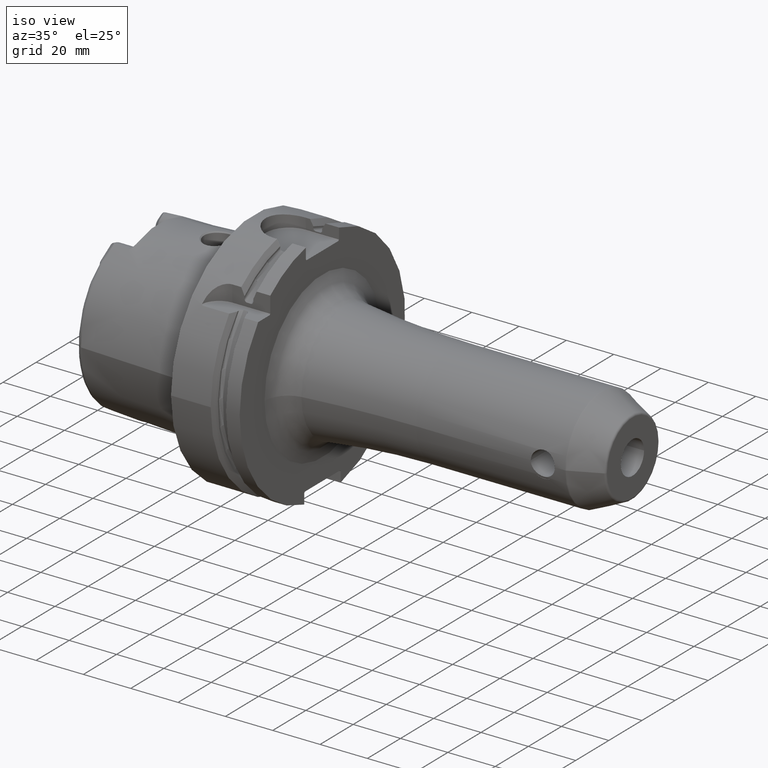
[diagram: clean part render]
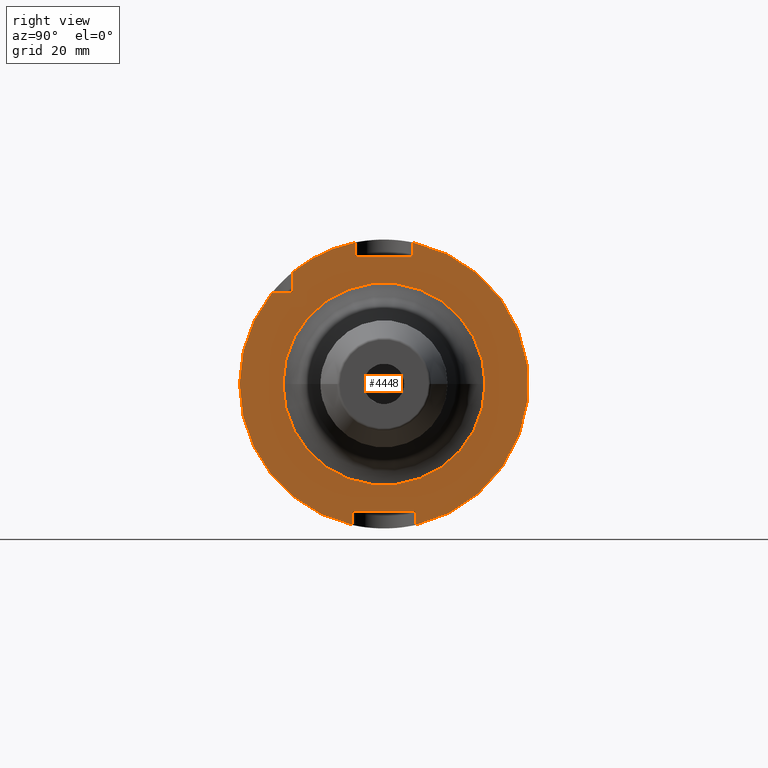
[diagram: tour spotlight — one face highlighted and labeled with its STEP entity id]
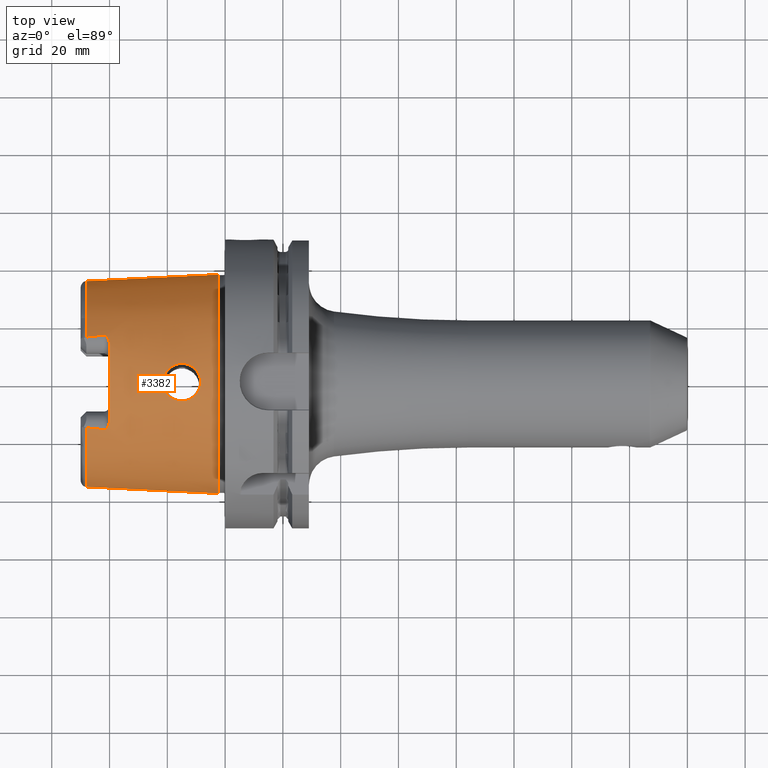
[diagram: tour spotlight — one face highlighted and labeled with its STEP entity id]
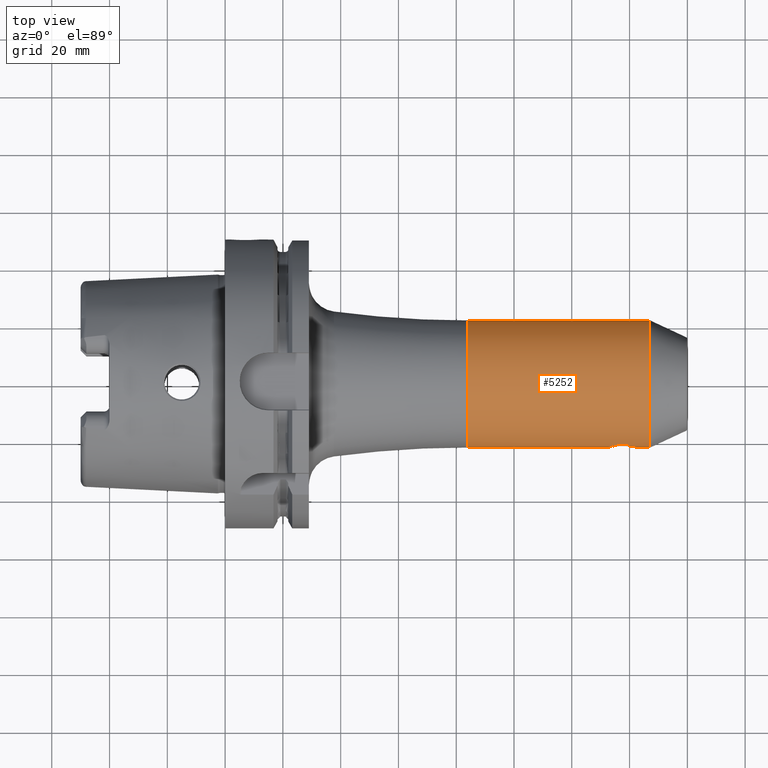
[diagram: tour spotlight — one face highlighted and labeled with its STEP entity id]
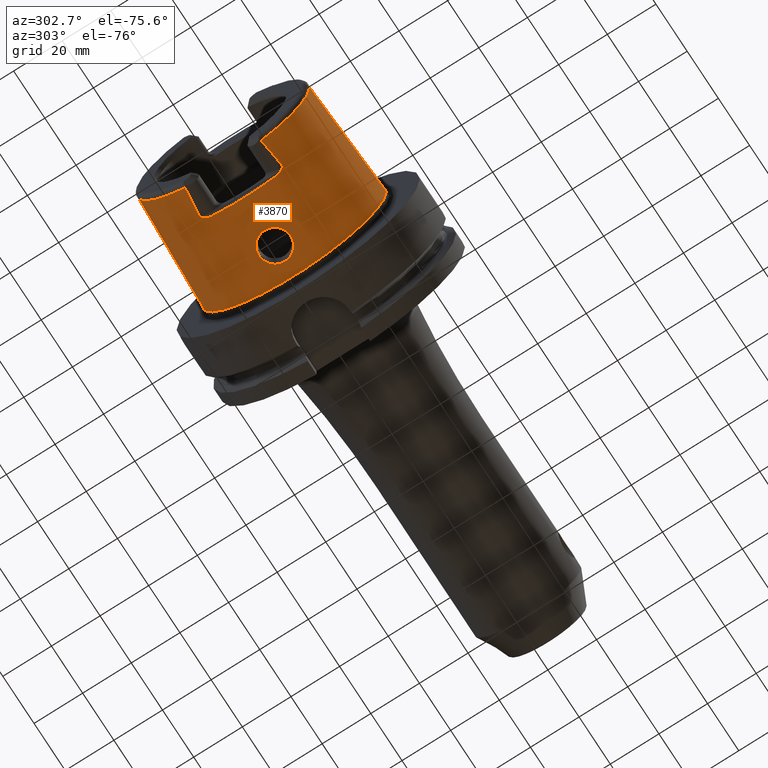
[diagram: tour spotlight — one face highlighted and labeled with its STEP entity id]
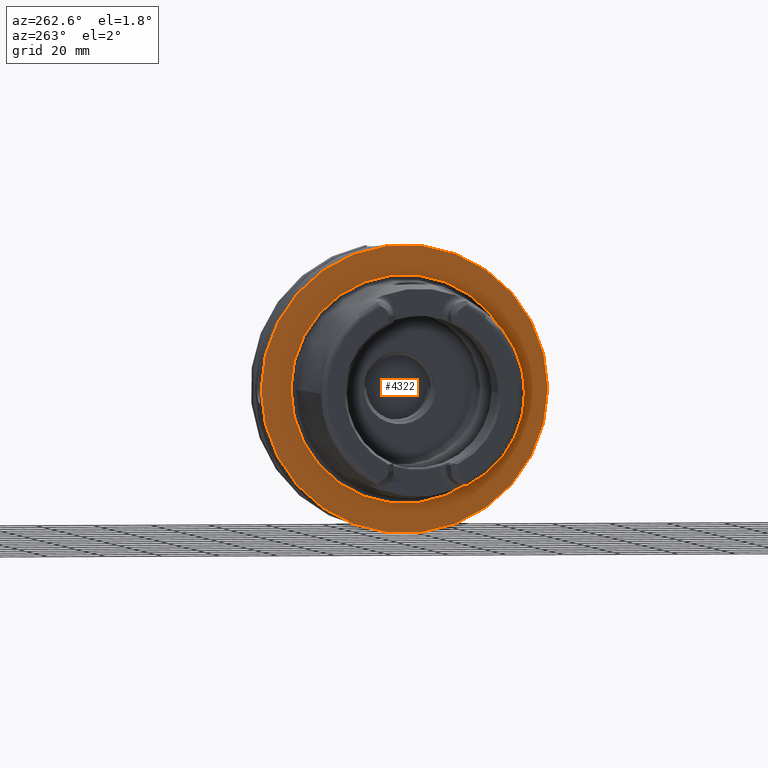
[diagram: tour spotlight — one face highlighted and labeled with its STEP entity id]
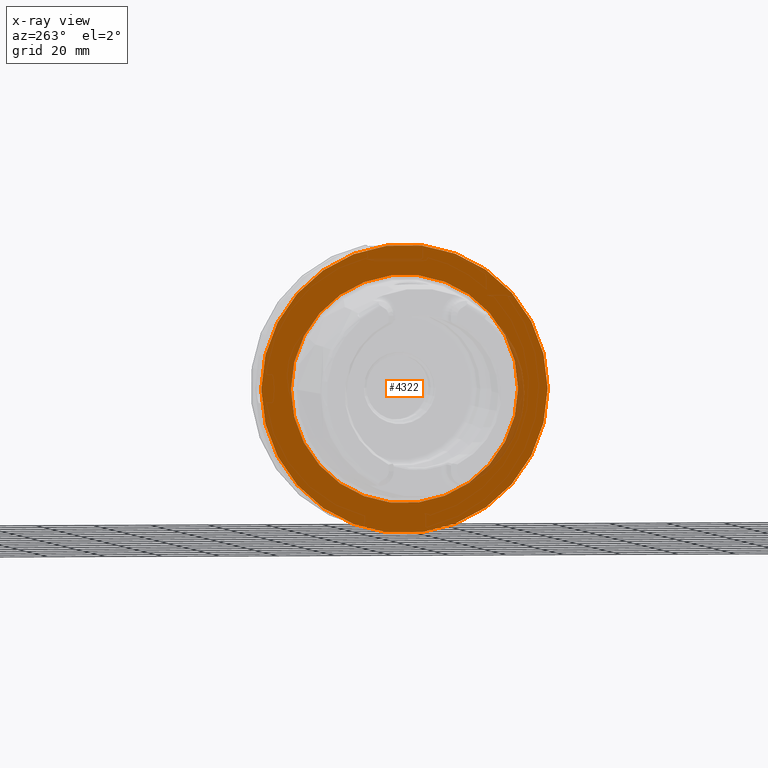
[diagram: x-ray of the same camera — body ghosted, this tour face saturated]
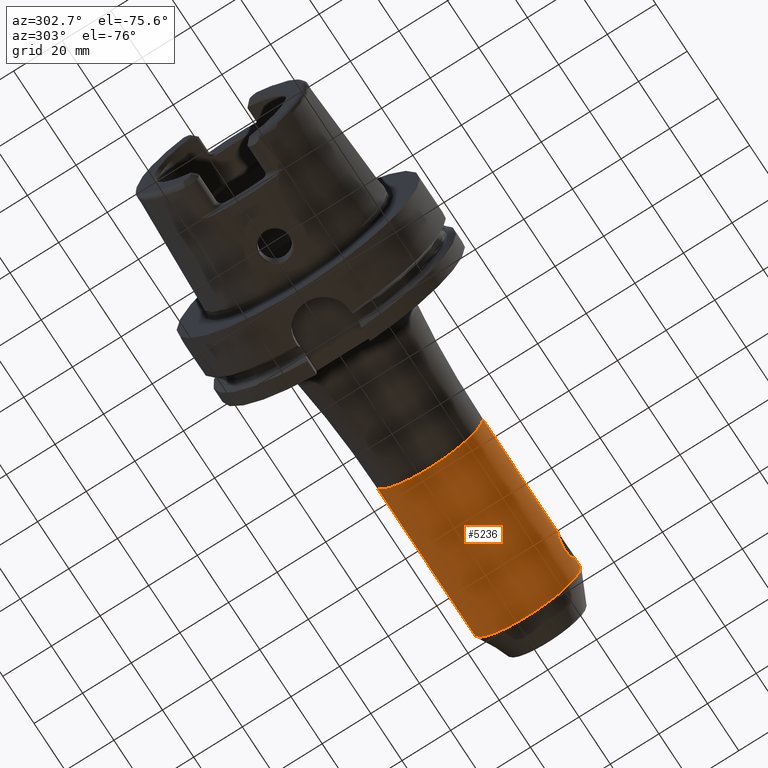
[diagram: tour spotlight — one face highlighted and labeled with its STEP entity id]
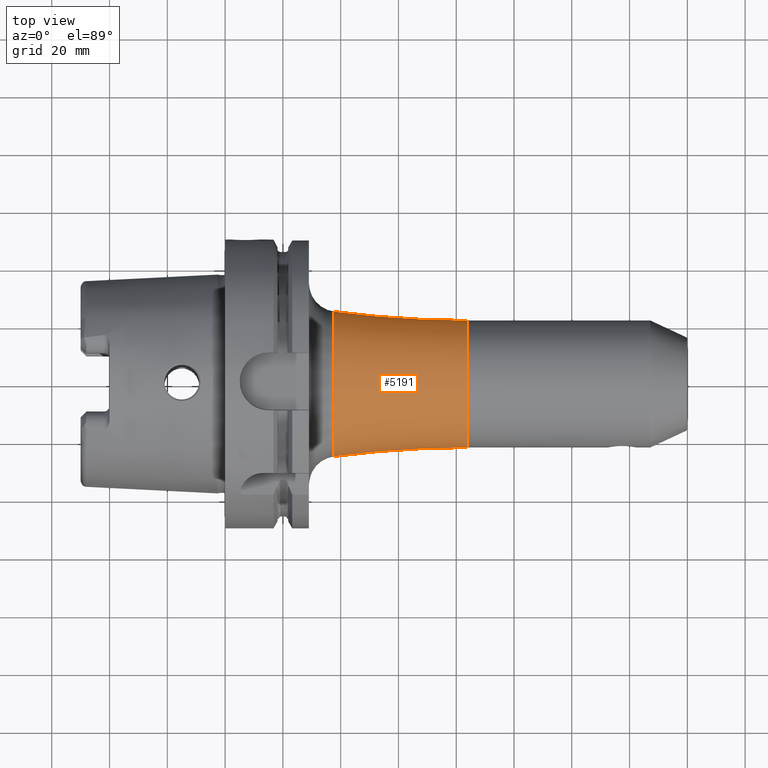
[diagram: tour spotlight — one face highlighted and labeled with its STEP entity id]
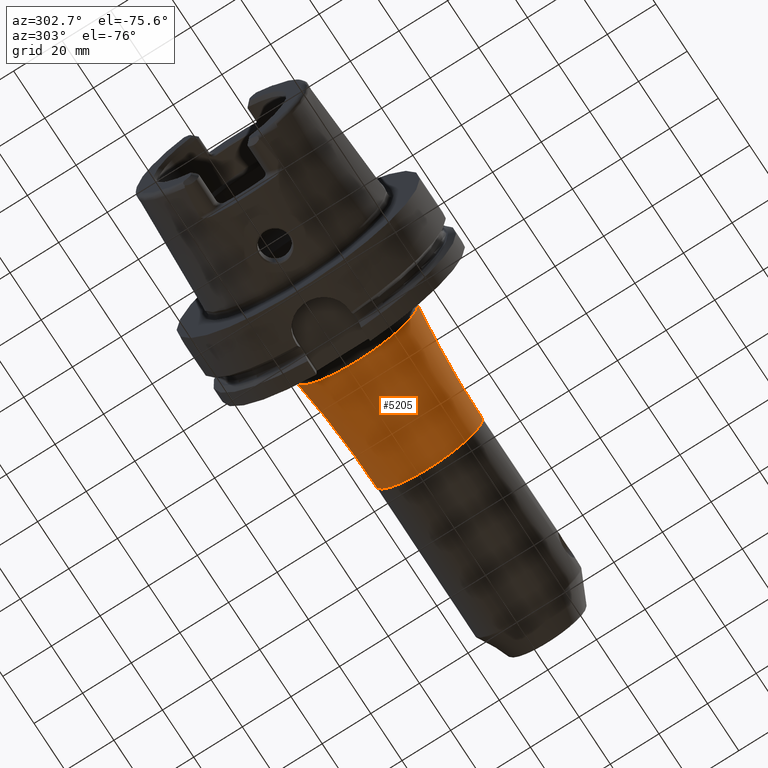
[diagram: tour spotlight — one face highlighted and labeled with its STEP entity id]
A machine part: a face-by-face anatomy tour. The part has 182 B-rep faces; the first image is the clean iso view, then the 8 largest visible faces are spotlighted one at a time (largest first), each with its STEP entity span.

Face 1 — right view, entity #4448. In plain terms, the highlighted planar face has unit normal (1, 0, 0).
Definition (entity closure, byte-faithful):
#1051=DIRECTION('',(0.E0,-7.071067811865E-1,-7.071067811865E-1));
#1052=VECTOR('',#1051,5.656854249492E-1);
#1053=CARTESIAN_POINT('',(2.9E1,-3.15E1,3.19E1));
#1054=LINE('',#1053,#1052);
#1059=DIRECTION('',(0.E0,1.E0,0.E0));
#1060=VECTOR('',#1059,6.929756630708E0);
#1061=CARTESIAN_POINT('',(2.9E1,-3.882975663071E1,3.15E1));
#1062=LINE('',#1061,#1060);
#1063=DIRECTION('',(0.E0,0.E0,-1.E0));
#1064=VECTOR('',#1063,6.929756630708E0);
#1065=CARTESIAN_POINT('',(2.9E1,-3.15E1,3.882975663071E1));
#1066=LINE('',#1065,#1064);
#1067=DIRECTION('',(0.E0,0.E0,-1.E0));
#1068=VECTOR('',#1067,4.589794855664E0);
#1069=CARTESIAN_POINT('',(2.9E1,-1.E1,4.898979485566E1));
#1070=LINE('',#1069,#1068);
#1071=DIRECTION('',(0.E0,1.E0,0.E0));
#1072=VECTOR('',#1071,1.92E1);
#1073=CARTESIAN_POINT('',(2.9E1,-9.6E0,4.4E1));
#1074=LINE('',#1073,#1072);
#1075=DIRECTION('',(0.E0,0.E0,-1.E0));
#1076=VECTOR('',#1075,4.589794855664E0);
#1077=CARTESIAN_POINT('',(2.9E1,1.E1,4.898979485566E1));
#1078=LINE('',#1077,#1076);
#1079=DIRECTION('',(0.E0,0.E0,1.E0));
#1080=VECTOR('',#1079,4.374993593029E0);
#1081=CARTESIAN_POINT('',(2.9E1,1.1E1,-4.877499359303E1));
#1082=LINE('',#1081,#1080);
#1083=DIRECTION('',(0.E0,-1.E0,0.E0));
#1084=VECTOR('',#1083,2.12E1);
#1085=CARTESIAN_POINT('',(2.9E1,1.06E1,-4.4E1));
#1086=LINE('',#1085,#1084);
#1087=DIRECTION('',(0.E0,0.E0,1.E0));
#1088=VECTOR('',#1087,4.374993593029E0);
#1089=CARTESIAN_POINT('',(2.9E1,-1.1E1,-4.877499359303E1));
#1090=LINE('',#1089,#1088);
#1091=CARTESIAN_POINT('',(2.9E1,0.E0,0.E0));
#1092=DIRECTION('',(1.E0,0.E0,0.E0));
#1093=DIRECTION('',(0.E0,1.E0,0.E0));
#1094=AXIS2_PLACEMENT_3D('',#1091,#1092,#1093);
#1096=CARTESIAN_POINT('',(2.9E1,0.E0,0.E0));
#1097=DIRECTION('',(1.E0,0.E0,0.E0));
#1098=DIRECTION('',(0.E0,-1.E0,0.E0));
#1099=AXIS2_PLACEMENT_3D('',#1096,#1097,#1098);
#1114=CARTESIAN_POINT('',(2.9E1,0.E0,0.E0));
#1115=DIRECTION('',(1.E0,0.E0,0.E0));
#1116=DIRECTION('',(0.E0,2.2E-1,-9.754998718606E-1));
#1117=AXIS2_PLACEMENT_3D('',#1114,#1115,#1116);
#1127=CARTESIAN_POINT('',(2.9E1,0.E0,0.E0));
#1128=DIRECTION('',(1.E0,0.E0,0.E0));
#1129=DIRECTION('',(0.E0,-7.765951326142E-1,6.3E-1));
#1130=AXIS2_PLACEMENT_3D('',#1127,#1128,#1129);
#1144=CARTESIAN_POINT('',(2.9E1,0.E0,0.E0));
#1145=DIRECTION('',(1.E0,0.E0,0.E0));
#1146=DIRECTION('',(0.E0,-2.E-1,9.797958971133E-1));
#1147=AXIS2_PLACEMENT_3D('',#1144,#1145,#1146);
#1251=DIRECTION('',(0.E0,7.071067811866E-1,-7.071067811865E-1));
#1252=VECTOR('',#1251,5.656854249492E-1);
#1253=CARTESIAN_POINT('',(2.9E1,1.06E1,-4.4E1));
#1254=LINE('',#1253,#1252);
#1259=DIRECTION('',(0.E0,7.071067811866E-1,7.071067811865E-1));
#1260=VECTOR('',#1259,5.656854249492E-1);
#1261=CARTESIAN_POINT('',(2.9E1,-1.1E1,-4.44E1));
#1262=LINE('',#1261,#1260);
#1748=DIRECTION('',(0.E0,-7.071067811866E-1,-7.071067811865E-1));
#1749=VECTOR('',#1748,5.656854249492E-1);
#1750=CARTESIAN_POINT('',(2.9E1,1.E1,4.44E1));
#1751=LINE('',#1750,#1749);
#1756=DIRECTION('',(0.E0,-7.071067811866E-1,7.071067811865E-1));
#1757=VECTOR('',#1756,5.656854249492E-1);
#1758=CARTESIAN_POINT('',(2.9E1,-9.6E0,4.4E1));
#1759=LINE('',#1758,#1757);
#3126=CARTESIAN_POINT('',(2.9E1,-9.6E0,4.4E1));
#3127=CARTESIAN_POINT('',(2.9E1,-1.E1,4.44E1));
#3128=VERTEX_POINT('',#3126);
#3129=VERTEX_POINT('',#3127);
#3130=CARTESIAN_POINT('',(2.9E1,1.E1,4.44E1));
#3131=CARTESIAN_POINT('',(2.9E1,9.6E0,4.4E1));
#3132=VERTEX_POINT('',#3130);
#3133=VERTEX_POINT('',#3131);
#3134=CARTESIAN_POINT('',(2.9E1,1.06E1,-4.4E1));
#3135=CARTESIAN_POINT('',(2.9E1,1.1E1,-4.44E1));
#3136=VERTEX_POINT('',#3134);
#3137=VERTEX_POINT('',#3135);
#3138=CARTESIAN_POINT('',(2.9E1,-1.1E1,-4.44E1));
#3139=CARTESIAN_POINT('',(2.9E1,-1.06E1,-4.4E1));
#3140=VERTEX_POINT('',#3138);
#3141=VERTEX_POINT('',#3139);
#3179=CARTESIAN_POINT('',(2.9E1,1.1E1,-4.877499359303E1));
#3181=VERTEX_POINT('',#3179);
#3187=CARTESIAN_POINT('',(2.9E1,-1.1E1,-4.877499359303E1));
#3189=VERTEX_POINT('',#3187);
#3222=CARTESIAN_POINT('',(2.9E1,-1.E1,4.898979485566E1));
#3223=VERTEX_POINT('',#3222);
#3224=CARTESIAN_POINT('',(2.9E1,1.E1,4.898979485566E1));
#3225=VERTEX_POINT('',#3224);
#3228=CARTESIAN_POINT('',(2.9E1,-3.15E1,3.19E1));
#3229=CARTESIAN_POINT('',(2.9E1,-3.19E1,3.15E1));
#3230=VERTEX_POINT('',#3228);
#3231=VERTEX_POINT('',#3229);
#3237=CARTESIAN_POINT('',(2.9E1,-3.882975663071E1,3.15E1));
#3239=VERTEX_POINT('',#3237);
#3241=CARTESIAN_POINT('',(2.9E1,-3.15E1,3.882975663071E1));
#3243=VERTEX_POINT('',#3241);
#3337=CARTESIAN_POINT('',(2.9E1,3.499109804042E1,-2.818502575901E-13));
#3338=CARTESIAN_POINT('',(2.9E1,-3.499109804042E1,2.861354312115E-13));
#3339=VERTEX_POINT('',#3337);
#3340=VERTEX_POINT('',#3338);
#4404=CARTESIAN_POINT('',(2.9E1,0.E0,0.E0));
#4405=DIRECTION('',(1.E0,0.E0,0.E0));
#4406=DIRECTION('',(0.E0,-1.E0,0.E0));
#4407=AXIS2_PLACEMENT_3D('',#4404,#4405,#4406);
#4408=PLANE('',#4407);
#4410=ORIENTED_EDGE('',*,*,#4409,.T.);
#4411=ORIENTED_EDGE('',*,*,#4394,.F.);
#4413=ORIENTED_EDGE('',*,*,#4412,.F.);
#4415=ORIENTED_EDGE('',*,*,#4414,.F.);
#4417=ORIENTED_EDGE('',*,*,#4416,.T.);
#4419=ORIENTED_EDGE('',*,*,#4418,.F.);
#4421=ORIENTED_EDGE('',*,*,#4420,.T.);
#4423=ORIENTED_EDGE('',*,*,#4422,.F.);
#4425=ORIENTED_EDGE('',*,*,#4424,.F.);
#4427=ORIENTED_EDGE('',*,*,#4426,.F.);
#4429=ORIENTED_EDGE('',*,*,#4428,.T.);
#4431=ORIENTED_EDGE('',*,*,#4430,.F.);
#4433=ORIENTED_EDGE('',*,*,#4432,.T.);
#4435=ORIENTED_EDGE('',*,*,#4434,.F.);
#4437=ORIENTED_EDGE('',*,*,#4436,.F.);
#4439=ORIENTED_EDGE('',*,*,#4438,.F.);
#4440=EDGE_LOOP('',(#4410,#4411,#4413,#4415,#4417,#4419,#4421,#4423,#4425,#4427,
#4429,#4431,#4433,#4435,#4437,#4439));
#4441=FACE_OUTER_BOUND('',#4440,.F.);
#4443=ORIENTED_EDGE('',*,*,#4442,.T.);
#4445=ORIENTED_EDGE('',*,*,#4444,.T.);
#4446=EDGE_LOOP('',(#4443,#4445));
#4447=FACE_BOUND('',#4446,.F.);
#4448=ADVANCED_FACE('',(#4441,#4447),#4408,.T.);
#1095=CIRCLE('',#1094,3.499109804042E1);
#1100=CIRCLE('',#1099,3.499109804042E1);
#1118=CIRCLE('',#1117,5.E1);
#1131=CIRCLE('',#1130,5.E1);
#1148=CIRCLE('',#1147,5.E1);
#4394=EDGE_CURVE('',#3230,#3231,#1054,.T.);
#4409=EDGE_CURVE('',#3239,#3231,#1062,.T.);
#4412=EDGE_CURVE('',#3243,#3230,#1066,.T.);
#4414=EDGE_CURVE('',#3223,#3243,#1148,.T.);
#4416=EDGE_CURVE('',#3223,#3129,#1070,.T.);
#4418=EDGE_CURVE('',#3128,#3129,#1759,.T.);
#4420=EDGE_CURVE('',#3128,#3133,#1074,.T.);
#4422=EDGE_CURVE('',#3132,#3133,#1751,.T.);
#4424=EDGE_CURVE('',#3225,#3132,#1078,.T.);
#4426=EDGE_CURVE('',#3181,#3225,#1118,.T.);
#4428=EDGE_CURVE('',#3181,#3137,#1082,.T.);
#4430=EDGE_CURVE('',#3136,#3137,#1254,.T.);
#4432=EDGE_CURVE('',#3136,#3141,#1086,.T.);
#4434=EDGE_CURVE('',#3140,#3141,#1262,.T.);
#4436=EDGE_CURVE('',#3189,#3140,#1090,.T.);
#4438=EDGE_CURVE('',#3239,#3189,#1131,.T.);
#4442=EDGE_CURVE('',#3339,#3340,#1095,.T.);
#4444=EDGE_CURVE('',#3340,#3339,#1100,.T.);

Face 2 — top view, entity #3382. In plain terms, the highlighted conical surface has half-angle 2.868 deg.
Definition (entity closure, byte-faithful):
#2=CARTESIAN_POINT('',(-4.810007448473E1,-1.567653238626E1,3.196E1));
#3=CARTESIAN_POINT('',(-4.743649089753E1,-1.575202511592E1,3.196E1));
#4=CARTESIAN_POINT('',(-4.609985749196E1,-1.590320831227E1,3.196E1));
#5=CARTESIAN_POINT('',(-4.406668280177E1,-1.613055880919E1,3.196E1));
#6=CARTESIAN_POINT('',(-4.269206894520E1,-1.628254944441E1,3.196E1));
#7=CARTESIAN_POINT('',(-4.2E1,-1.635864758744E1,3.196E1));
#9=CARTESIAN_POINT('',(-4.E1,0.E0,0.E0));
#10=DIRECTION('',(1.E0,0.E0,0.E0));
#11=DIRECTION('',(0.E0,3.574556786365E-1,9.339301032789E-1));
#12=AXIS2_PLACEMENT_3D('',#9,#10,#11);
#14=CARTESIAN_POINT('',(-4.2E1,1.635864758744E1,3.196E1));
#15=CARTESIAN_POINT('',(-4.269204070145E1,1.628255255002E1,3.196E1));
#16=CARTESIAN_POINT('',(-4.406661691692E1,1.613056612298E1,3.196E1));
#17=CARTESIAN_POINT('',(-4.609979244919E1,1.590321563865E1,3.196E1));
#18=CARTESIAN_POINT('',(-4.743646302974E1,1.575202828631E1,3.196E1));
#19=CARTESIAN_POINT('',(-4.810007448473E1,1.567653238626E1,3.196E1));
#21=CARTESIAN_POINT('',(-2.5E0,0.E0,0.E0));
#22=DIRECTION('',(1.E0,0.E0,0.E0));
#23=DIRECTION('',(0.E0,1.E0,0.E0));
#24=AXIS2_PLACEMENT_3D('',#21,#22,#23);
#26=CARTESIAN_POINT('',(-2.149938207697E1,5.552926221647E-11,3.693037254664E1));
#27=CARTESIAN_POINT('',(-2.149947810722E1,2.456946967410E-1,3.693041400584E1));
#28=CARTESIAN_POINT('',(-2.146978943123E1,7.663421073483E-1,3.692663668754E1));
#29=CARTESIAN_POINT('',(-2.132902699242E1,1.552723327933E0,3.690919478302E1));
#30=CARTESIAN_POINT('',(-2.108091480959E1,2.342139536845E0,3.687974365394E1));
#31=CARTESIAN_POINT('',(-2.073440330363E1,3.094103832942E0,3.684140909161E1));
#32=CARTESIAN_POINT('',(-2.029456045373E1,3.796705318232E0,3.679744070735E1));
#33=CARTESIAN_POINT('',(-1.976895967621E1,4.437440706102E0,3.675180792921E1));
#34=CARTESIAN_POINT('',(-1.916766491360E1,5.004833501251E0,3.670884542936E1));
#35=CARTESIAN_POINT('',(-1.850089510031E1,5.490460623479E0,3.667275311991E1));
#36=CARTESIAN_POINT('',(-1.777939225152E1,5.887431777884E0,3.664739565010E1));
#37=CARTESIAN_POINT('',(-1.701424609593E1,6.190220322635E0,3.663607600264E1));
#38=CARTESIAN_POINT('',(-1.621758055837E1,6.394419176819E0,3.664131821143E1));
#39=CARTESIAN_POINT('',(-1.539955429301E1,6.497326105441E0,3.666474029556E1));
#40=CARTESIAN_POINT('',(-1.457114975166E1,6.496134002949E0,3.670710840669E1));
#41=CARTESIAN_POINT('',(-1.375127425398E1,6.390454994673E0,3.676745544266E1));
#42=CARTESIAN_POINT('',(-1.294983719070E1,6.181706493026E0,3.684404556607E1));
#43=CARTESIAN_POINT('',(-1.217938970715E1,5.872066509057E0,3.693403258601E1));
#44=CARTESIAN_POINT('',(-1.145343003562E1,5.466036101540E0,3.703341626103E1));
#45=CARTESIAN_POINT('',(-1.078465658031E1,4.970022940288E0,3.713742863004E1));
#46=CARTESIAN_POINT('',(-1.018517891880E1,4.392789013038E0,3.724075525816E1));
#47=CARTESIAN_POINT('',(-9.665388344352E0,3.744837411386E0,3.733802077293E1));
#48=CARTESIAN_POINT('',(-9.234092519568E0,3.038687491876E0,3.742410507514E1));
#49=CARTESIAN_POINT('',(-8.897351452215E0,2.287331206380E0,3.749468513875E1));
#50=CARTESIAN_POINT('',(-8.658527750933E0,1.501792221622E0,3.754652778726E1));
#51=CARTESIAN_POINT('',(-8.527369438248E0,7.337668322055E-1,3.757562813366E1));
#52=CARTESIAN_POINT('',(-8.500550849541E0,2.307484502453E-1,3.758164606668E1));
#53=CARTESIAN_POINT('',(-8.500618238409E0,-3.201212427053E-11,
3.758161093072E1));
#55=CARTESIAN_POINT('',(-8.500618238409E0,-3.201212427053E-11,
3.758161093072E1));
#56=CARTESIAN_POINT('',(-8.500529243712E0,-2.424312186462E-1,3.758165761842E1));
#57=CARTESIAN_POINT('',(-8.529377584627E0,-7.570713761110E-1,3.757517365272E1));
#58=CARTESIAN_POINT('',(-8.666699960505E0,-1.535920192154E0,3.754473037167E1));
#59=CARTESIAN_POINT('',(-8.909712492800E0,-2.320075305293E0,3.749204213674E1));
#60=CARTESIAN_POINT('',(-9.250504215006E0,-3.069650750447E0,3.742074072411E1));
#61=CARTESIAN_POINT('',(-9.685687617568E0,-3.773592271729E0,3.733408895737E1));
#62=CARTESIAN_POINT('',(-1.020908185061E1,-4.418816591912E0,3.723645352953E1));
#63=CARTESIAN_POINT('',(-1.081164311031E1,-4.992724782849E0,3.713300191729E1));
#64=CARTESIAN_POINT('',(-1.148289197008E1,-5.484961003997E0,3.702910971345E1));
#65=CARTESIAN_POINT('',(-1.221077052890E1,-5.886958600290E0,3.693005620282E1));
#66=CARTESIAN_POINT('',(-1.298272715167E1,-6.192450910075E0,3.684056019680E1));
#67=CARTESIAN_POINT('',(-1.378543745730E1,-6.397007236175E0,3.676457229973E1));
#68=CARTESIAN_POINT('',(-1.460657276070E1,-6.498354658048E0,3.670491060908E1));
#69=CARTESIAN_POINT('',(-1.543495839616E1,-6.495033034286E0,3.666334714016E1));
#70=CARTESIAN_POINT('',(-1.625254215847E1,-6.387680563827E0,3.664072182306E1));
#71=CARTESIAN_POINT('',(-1.704827269515E1,-6.179075952149E0,3.663623858926E1));
#72=CARTESIAN_POINT('',(-1.781166108930E1,-5.872129661425E0,3.664822647582E1));
#73=CARTESIAN_POINT('',(-1.853088883617E1,-5.471276112331E0,3.667411627299E1));
#74=CARTESIAN_POINT('',(-1.919496044775E1,-4.982042332370E0,3.671058230959E1));
#75=CARTESIAN_POINT('',(-1.979312959260E1,-4.411388967116E0,3.675374151488E1));
#76=CARTESIAN_POINT('',(-2.031520136204E1,-3.767815751250E0,3.679938652908E1));
#77=CARTESIAN_POINT('',(-2.075116173440E1,-3.062888856216E0,3.684318827995E1));
#78=CARTESIAN_POINT('',(-2.109352623852E1,-2.309166702590E0,3.688120055672E1));
#79=CARTESIAN_POINT('',(-2.133733752753E1,-1.518482485311E0,3.691020909579E1));
#80=CARTESIAN_POINT('',(-2.147183542910E1,-7.429704319279E-1,3.692690027450E1));
#81=CARTESIAN_POINT('',(-2.149945558988E1,-2.340112752743E-1,3.693040395664E1));
#82=CARTESIAN_POINT('',(-2.149938207697E1,5.552926221647E-11,3.693037254664E1));
#248=CARTESIAN_POINT('',(-4.044615405310E1,1.501E1,3.270080868281E1));
#249=CARTESIAN_POINT('',(-4.036716971646E1,1.480714421409E1,3.279827559643E1));
#250=CARTESIAN_POINT('',(-4.023151678165E1,1.441318283024E1,3.298193753654E1));
#251=CARTESIAN_POINT('',(-4.009402199227E1,1.386111148947E1,3.322490472400E1));
#252=CARTESIAN_POINT('',(-4.001617021866E1,1.334582492697E1,3.343918234932E1));
#253=CARTESIAN_POINT('',(-4.E1,1.302441475567E1,3.356551938374E1));
#254=CARTESIAN_POINT('',(-4.E1,1.286965552579E1,3.362475247340E1));
#312=CARTESIAN_POINT('',(-4.810007448473E1,0.E0,0.E0));
#313=DIRECTION('',(1.E0,0.E0,0.E0));
#314=DIRECTION('',(0.E0,1.E0,0.E0));
#315=AXIS2_PLACEMENT_3D('',#312,#313,#314);
#387=CARTESIAN_POINT('',(-4.810007448473E1,0.E0,0.E0));
#388=DIRECTION('',(1.E0,0.E0,0.E0));
#389=DIRECTION('',(0.E0,-4.403806547453E-1,8.978111599474E-1));
#390=AXIS2_PLACEMENT_3D('',#387,#388,#389);
#561=DIRECTION('',(-9.987473526255E-1,5.003724236654E-2,0.E0));
#562=VECTOR('',#561,4.565726694029E1);
#563=CARTESIAN_POINT('',(-2.5E0,-3.788225E1,0.E0));
#564=LINE('',#563,#562);
#570=DIRECTION('',(-9.987473526255E-1,-5.003724236654E-2,0.E0));
#571=VECTOR('',#570,4.565726694029E1);
#572=CARTESIAN_POINT('',(-2.5E0,3.788225E1,0.E0));
#573=LINE('',#572,#571);
#2757=CARTESIAN_POINT('',(-4.E1,-1.286965552579E1,3.362475247340E1));
#2758=CARTESIAN_POINT('',(-4.E1,-1.302441541648E1,3.356551913082E1));
#2759=CARTESIAN_POINT('',(-4.001617018251E1,-1.334582535629E1,
3.343918219674E1));
#2760=CARTESIAN_POINT('',(-4.009402242674E1,-1.386111200207E1,
3.322490442026E1));
#2761=CARTESIAN_POINT('',(-4.023151276023E1,-1.441316885171E1,
3.298194383001E1));
#2762=CARTESIAN_POINT('',(-4.036716744567E1,-1.480713838201E1,
3.279827839859E1));
#2763=CARTESIAN_POINT('',(-4.044615405310E1,-1.501E1,3.270080868281E1));
#2839=CARTESIAN_POINT('',(-4.044615405310E1,-1.501E1,3.270080868281E1));
#2840=CARTESIAN_POINT('',(-4.048970886745E1,-1.512186200292E1,
3.264706190833E1));
#2841=CARTESIAN_POINT('',(-4.058203784729E1,-1.533106618308E1,
3.254453864538E1));
#2842=CARTESIAN_POINT('',(-4.073432021554E1,-1.560191666355E1,
3.240695208273E1));
#2843=CARTESIAN_POINT('',(-4.089735125525E1,-1.582886077686E1,
3.228748605874E1));
#2844=CARTESIAN_POINT('',(-4.106769081077E1,-1.601331012900E1,
3.218678608847E1));
#2845=CARTESIAN_POINT('',(-4.125393253486E1,-1.616457753287E1,
3.210056649743E1));
#2846=CARTESIAN_POINT('',(-4.144626840802E1,-1.627335249792E1,
3.203468630644E1));
#2847=CARTESIAN_POINT('',(-4.163743535609E1,-1.633966611997E1,
3.199012198327E1));
#2848=CARTESIAN_POINT('',(-4.181861360320E1,-1.636784997544E1,
3.196549826812E1));
#2849=CARTESIAN_POINT('',(-4.194004005827E1,-1.636524063030E1,3.196E1));
#2850=CARTESIAN_POINT('',(-4.2E1,-1.635864758744E1,3.196E1));
#2860=CARTESIAN_POINT('',(-4.2E1,1.635864758744E1,3.196E1));
#2861=CARTESIAN_POINT('',(-4.193871342572E1,1.636538650345E1,3.196E1));
#2862=CARTESIAN_POINT('',(-4.181450390691E1,1.636814761969E1,3.196557762379E1));
#2863=CARTESIAN_POINT('',(-4.162243507007E1,1.633619695788E1,3.199274042675E1));
#2864=CARTESIAN_POINT('',(-4.143278453244E1,1.626680995517E1,3.203876886227E1));
#2865=CARTESIAN_POINT('',(-4.124494122381E1,1.615802805146E1,3.210436522250E1));
#2866=CARTESIAN_POINT('',(-4.106242535143E1,1.600818739776E1,3.218962850171E1));
#2867=CARTESIAN_POINT('',(-4.089248890939E1,1.582281513116E1,3.229072139863E1));
#2868=CARTESIAN_POINT('',(-4.073124146543E1,1.559684012110E1,3.240956146553E1));
#2869=CARTESIAN_POINT('',(-4.058058611384E1,1.532793070389E1,3.254608698749E1));
#2870=CARTESIAN_POINT('',(-4.048925691866E1,1.512070126105E1,3.264761961452E1));
#2871=CARTESIAN_POINT('',(-4.044615405310E1,1.501E1,3.270080868281E1));
#2893=CARTESIAN_POINT('',(-2.5E0,3.788225E1,0.E0));
#2894=CARTESIAN_POINT('',(-2.5E0,-3.788225E1,0.E0));
#2895=VERTEX_POINT('',#2893);
#2896=VERTEX_POINT('',#2894);
#2897=CARTESIAN_POINT('',(-4.810007448473E1,3.559768626831E1,0.E0));
#2898=VERTEX_POINT('',#2897);
#2899=CARTESIAN_POINT('',(-4.810007448473E1,-3.559768626831E1,0.E0));
#2900=VERTEX_POINT('',#2899);
#2937=CARTESIAN_POINT('',(-4.810007448473E1,1.567653238626E1,3.196E1));
#2938=VERTEX_POINT('',#2937);
#2939=CARTESIAN_POINT('',(-4.810007448473E1,-1.567653238626E1,3.196E1));
#2940=VERTEX_POINT('',#2939);
#2949=CARTESIAN_POINT('',(-4.E1,1.286965552579E1,3.362475247340E1));
#2950=VERTEX_POINT('',#2949);
#2953=CARTESIAN_POINT('',(-4.2E1,1.635864758744E1,3.196E1));
#2954=VERTEX_POINT('',#2953);
#2955=CARTESIAN_POINT('',(-4.E1,-1.286965552579E1,3.362475247340E1));
#2956=VERTEX_POINT('',#2955);
#2959=CARTESIAN_POINT('',(-4.2E1,-1.635864758744E1,3.196E1));
#2960=VERTEX_POINT('',#2959);
#2961=VERTEX_POINT('',#2871);
#2962=VERTEX_POINT('',#2839);
#3102=VERTEX_POINT('',#26);
#3103=VERTEX_POINT('',#53);
#3345=CARTESIAN_POINT('',(-2.530003724237E1,0.E0,0.E0));
#3346=DIRECTION('',(1.E0,0.E0,0.E0));
#3347=DIRECTION('',(0.E0,-1.E0,0.E0));
#3348=AXIS2_PLACEMENT_3D('',#3345,#3346,#3347);
#3349=CONICAL_SURFACE('',#3348,3.673996813416E1,2.868120487315E0);
#3351=ORIENTED_EDGE('',*,*,#3350,.T.);
#3353=ORIENTED_EDGE('',*,*,#3352,.F.);
#3355=ORIENTED_EDGE('',*,*,#3354,.F.);
#3357=ORIENTED_EDGE('',*,*,#3356,.F.);
#3359=ORIENTED_EDGE('',*,*,#3358,.F.);
#3361=ORIENTED_EDGE('',*,*,#3360,.F.);
#3363=ORIENTED_EDGE('',*,*,#3362,.T.);
#3365=ORIENTED_EDGE('',*,*,#3364,.F.);
#3367=ORIENTED_EDGE('',*,*,#3366,.F.);
#3369=ORIENTED_EDGE('',*,*,#3368,.T.);
#3371=ORIENTED_EDGE('',*,*,#3370,.T.);
#3373=ORIENTED_EDGE('',*,*,#3372,.F.);
#3374=EDGE_LOOP('',(#3351,#3353,#3355,#3357,#3359,#3361,#3363,#3365,#3367,#3369,
#3371,#3373));
#3375=FACE_OUTER_BOUND('',#3374,.F.);
#3377=ORIENTED_EDGE('',*,*,#3376,.F.);
#3379=ORIENTED_EDGE('',*,*,#3378,.F.);
#3380=EDGE_LOOP('',(#3377,#3379));
#3381=FACE_BOUND('',#3380,.F.);
#3382=ADVANCED_FACE('',(#3375,#3381),#3349,.T.);
#8=B_SPLINE_CURVE_WITH_KNOTS('',3,(#2,#3,#4,#5,#6,#7),.UNSPECIFIED.,.F.,.F.,(4,
1,1,4),(0.E0,3.333333333333E-1,6.666666666667E-1,1.E0),.UNSPECIFIED.);
#13=CIRCLE('',#12,3.60035E1);
#20=B_SPLINE_CURVE_WITH_KNOTS('',3,(#14,#15,#16,#17,#18,#19),.UNSPECIFIED.,.F.,
.F.,(4,1,1,4),(0.E0,3.333333333333E-1,6.666666666667E-1,1.E0),.UNSPECIFIED.);
#25=CIRCLE('',#24,3.788225E1);
#54=B_SPLINE_CURVE_WITH_KNOTS('',3,(#26,#27,#28,#29,#30,#31,#32,#33,#34,#35,#36,
#37,#38,#39,#40,#41,#42,#43,#44,#45,#46,#47,#48,#49,#50,#51,#52,#53),
.UNSPECIFIED.,.F.,.F.,(4,1,1,1,1,1,1,1,1,1,1,1,1,1,1,1,1,1,1,1,1,1,1,1,1,4),(
0.E0,3.626792904996E-2,7.667308714875E-2,1.170782452475E-1,1.574834033463E-1,
1.978885614451E-1,2.382937195439E-1,2.786988776427E-1,3.191040357415E-1,
3.595091938403E-1,3.999143519391E-1,4.403195100379E-1,4.807246681367E-1,
5.211298262355E-1,5.615349843343E-1,6.019401424331E-1,6.423453005319E-1,
6.827504586307E-1,7.231556167295E-1,7.635607748283E-1,8.039659329271E-1,
8.443710910259E-1,8.847762491247E-1,9.251814072235E-1,9.655865653223E-1,1.E0),
.UNSPECIFIED.);
#83=B_SPLINE_CURVE_WITH_KNOTS('',3,(#55,#56,#57,#58,#59,#60,#61,#62,#63,#64,#65,
#66,#67,#68,#69,#70,#71,#72,#73,#74,#75,#76,#77,#78,#79,#80,#81,#82),
.UNSPECIFIED.,.F.,.F.,(4,1,1,1,1,1,1,1,1,1,1,1,1,1,1,1,1,1,1,1,1,1,1,1,1,4),(
0.E0,3.618329534544E-2,7.658712835106E-2,1.169909613567E-1,1.573947943623E-1,
1.977986273679E-1,2.382024603735E-1,2.786062933791E-1,3.190101263848E-1,
3.594139593904E-1,3.998177923960E-1,4.402216254016E-1,4.806254584072E-1,
5.210292914128E-1,5.614331244184E-1,6.018369574241E-1,6.422407904297E-1,
6.826446234353E-1,7.230484564409E-1,7.634522894465E-1,8.038561224521E-1,
8.442599554578E-1,8.846637884634E-1,9.250676214690E-1,9.654714544746E-1,1.E0),
.UNSPECIFIED.);
#255=B_SPLINE_CURVE_WITH_KNOTS('',3,(#248,#249,#250,#251,#252,#253,#254),
.UNSPECIFIED.,.F.,.F.,(4,1,1,1,4),(0.E0,2.5E-1,5.E-1,7.5E-1,1.E0),
.UNSPECIFIED.);
#316=CIRCLE('',#315,3.559768626831E1);
#391=CIRCLE('',#390,3.559768626831E1);
#2764=B_SPLINE_CURVE_WITH_KNOTS('',3,(#2757,#2758,#2759,#2760,#2761,#2762,
#2763),.UNSPECIFIED.,.F.,.F.,(4,1,1,1,4),(0.E0,2.5E-1,5.E-1,7.5E-1,1.E0),
.UNSPECIFIED.);
#2851=B_SPLINE_CURVE_WITH_KNOTS('',3,(#2839,#2840,#2841,#2842,#2843,#2844,#2845,
#2846,#2847,#2848,#2849,#2850),.UNSPECIFIED.,.F.,.F.,(4,1,1,1,1,1,1,1,1,4),
(0.E0,1.111111111111E-1,2.222222222222E-1,3.333333333333E-1,4.444444444444E-1,
5.555555555556E-1,6.666666666667E-1,7.777777777778E-1,8.888888888889E-1,1.E0),
.UNSPECIFIED.);
#2872=B_SPLINE_CURVE_WITH_KNOTS('',3,(#2860,#2861,#2862,#2863,#2864,#2865,#2866,
#2867,#2868,#2869,#2870,#2871),.UNSPECIFIED.,.F.,.F.,(4,1,1,1,1,1,1,1,1,4),
(0.E0,1.111111111111E-1,2.222222222222E-1,3.333333333333E-1,4.444444444444E-1,
5.555555555556E-1,6.666666666667E-1,7.777777777778E-1,8.888888888889E-1,1.E0),
.UNSPECIFIED.);
#3350=EDGE_CURVE('',#2940,#2960,#8,.T.);
#3352=EDGE_CURVE('',#2962,#2960,#2851,.T.);
#3354=EDGE_CURVE('',#2956,#2962,#2764,.T.);
#3356=EDGE_CURVE('',#2950,#2956,#13,.T.);
#3358=EDGE_CURVE('',#2961,#2950,#255,.T.);
#3360=EDGE_CURVE('',#2954,#2961,#2872,.T.);
#3362=EDGE_CURVE('',#2954,#2938,#20,.T.);
#3364=EDGE_CURVE('',#2898,#2938,#316,.T.);
#3366=EDGE_CURVE('',#2895,#2898,#573,.T.);
#3368=EDGE_CURVE('',#2895,#2896,#25,.T.);
#3370=EDGE_CURVE('',#2896,#2900,#564,.T.);
#3372=EDGE_CURVE('',#2940,#2900,#391,.T.);
#3376=EDGE_CURVE('',#3102,#3103,#54,.T.);
#3378=EDGE_CURVE('',#3103,#3102,#83,.T.);

Face 3 — top view, entity #5252. In plain terms, the highlighted cylindrical surface (partial cylindrical patch) has radius 22 mm, axis along (1, 0, 0).
Definition (entity closure, byte-faithful):
#1845=DIRECTION('',(-1.E0,0.E0,0.E0));
#1846=VECTOR('',#1845,4.84E1);
#1847=CARTESIAN_POINT('',(1.324E2,-2.2E1,0.E0));
#1848=LINE('',#1847,#1846);
#1879=DIRECTION('',(-1.E0,0.E0,-2.222814559014E-14));
#1880=VECTOR('',#1879,4.311263814300E0);
#1881=CARTESIAN_POINT('',(1.469112638143E2,-2.2E1,9.348626847479E-14));
#1882=LINE('',#1881,#1880);
#1888=DIRECTION('',(-1.E0,0.E0,0.E0));
#1889=VECTOR('',#1888,6.291126381430E1);
#1890=CARTESIAN_POINT('',(1.469112638143E2,2.2E1,-8.438986159762E-14));
#1891=LINE('',#1890,#1889);
#1892=CARTESIAN_POINT('',(8.4E1,0.E0,0.E0));
#1893=DIRECTION('',(1.E0,0.E0,0.E0));
#1894=DIRECTION('',(0.E0,1.E0,0.E0));
#1895=AXIS2_PLACEMENT_3D('',#1892,#1893,#1894);
#1897=CARTESIAN_POINT('',(1.469112638143E2,0.E0,0.E0));
#1898=DIRECTION('',(-1.E0,0.E0,0.E0));
#1899=DIRECTION('',(0.E0,-1.E0,0.E0));
#1900=AXIS2_PLACEMENT_3D('',#1897,#1898,#1899);
#1902=CARTESIAN_POINT('',(1.324E2,-2.2E1,0.E0));
#1903=CARTESIAN_POINT('',(1.324E2,-2.2E1,2.037346576762E-1));
#1904=CARTESIAN_POINT('',(1.324241808011E2,-2.199437473712E1,
6.087639250966E-1));
#1905=CARTESIAN_POINT('',(1.325338091137E2,-2.196922070991E1,1.213508994583E0));
#1906=CARTESIAN_POINT('',(1.327149954788E2,-2.192878240143E1,1.800082564489E0));
#1907=CARTESIAN_POINT('',(1.329676708114E2,-2.187478417496E1,2.365498949908E0));
#1908=CARTESIAN_POINT('',(1.332867490827E2,-2.181058581661E1,2.896128687608E0));
#1909=CARTESIAN_POINT('',(1.336716870428E2,-2.173915989428E1,3.388730911634E0));
#1910=CARTESIAN_POINT('',(1.341113875896E2,-2.166567882385E1,3.828432308357E0));
#1911=CARTESIAN_POINT('',(1.346042217527E2,-2.159373711646E1,4.213490220305E0));
#1912=CARTESIAN_POINT('',(1.351347699634E2,-2.152869787562E1,4.532482899853E0));
#1913=CARTESIAN_POINT('',(1.357007908548E2,-2.147362850135E1,4.785350392631E0));
#1914=CARTESIAN_POINT('',(1.362869365018E2,-2.143230188928E1,4.966237229581E0));
#1915=CARTESIAN_POINT('',(1.368904782218E2,-2.140650225703E1,5.075751520685E0));
#1916=CARTESIAN_POINT('',(1.374997532994E2,-2.139780105213E1,5.112121003192E0));
#1917=CARTESIAN_POINT('',(1.381094410989E2,-2.140649907750E1,5.075764447928E0));
#1918=CARTESIAN_POINT('',(1.387126610577E2,-2.143227997535E1,4.966331948856E0));
#1919=CARTESIAN_POINT('',(1.392990831065E2,-2.147361679518E1,4.785402228948E0));
#1920=CARTESIAN_POINT('',(1.398649301050E2,-2.152866572790E1,4.532634731894E0));
#1921=CARTESIAN_POINT('',(1.403956140713E2,-2.159371415278E1,4.213608461405E0));
#1922=CARTESIAN_POINT('',(1.408884154253E2,-2.166564847170E1,3.828600666471E0));
#1923=CARTESIAN_POINT('',(1.413281342456E2,-2.173912786892E1,3.388939868911E0));
#1924=CARTESIAN_POINT('',(1.417131466404E2,-2.181056575895E1,2.896272609722E0));
#1925=CARTESIAN_POINT('',(1.420321612459E2,-2.187474926996E1,2.365824898667E0));
#1926=CARTESIAN_POINT('',(1.422849666071E2,-2.192877383201E1,1.800194314719E0));
#1927=CARTESIAN_POINT('',(1.424661393309E2,-2.196920909811E1,1.213722075895E0));
#1928=CARTESIAN_POINT('',(1.425758254732E2,-2.199437610784E1,
6.087733003321E-1));
#1929=CARTESIAN_POINT('',(1.426E2,-2.2E1,2.037349589816E-1));
#1930=CARTESIAN_POINT('',(1.426E2,-2.2E1,0.E0));
#3311=CARTESIAN_POINT('',(1.469112638143E2,2.2E1,0.E0));
#3312=CARTESIAN_POINT('',(1.469112638143E2,-2.2E1,0.E0));
#3313=VERTEX_POINT('',#3311);
#3314=VERTEX_POINT('',#3312);
#3329=VERTEX_POINT('',#1902);
#3330=VERTEX_POINT('',#1930);
#3341=CARTESIAN_POINT('',(8.4E1,-2.2E1,0.E0));
#3342=VERTEX_POINT('',#3341);
#3343=CARTESIAN_POINT('',(8.4E1,2.2E1,0.E0));
#3344=VERTEX_POINT('',#3343);
#5237=CARTESIAN_POINT('',(2.245E1,0.E0,0.E0));
#5238=DIRECTION('',(1.E0,0.E0,0.E0));
#5239=DIRECTION('',(0.E0,-1.E0,0.E0));
#5240=AXIS2_PLACEMENT_3D('',#5237,#5238,#5239);
#5241=CYLINDRICAL_SURFACE('',#5240,2.2E1);
#5242=ORIENTED_EDGE('',*,*,#5185,.F.);
#5243=ORIENTED_EDGE('',*,*,#5232,.F.);
#5245=ORIENTED_EDGE('',*,*,#5244,.F.);
#5246=ORIENTED_EDGE('',*,*,#5228,.T.);
#5248=ORIENTED_EDGE('',*,*,#5247,.F.);
#5249=ORIENTED_EDGE('',*,*,#5224,.T.);
#5250=EDGE_LOOP('',(#5242,#5243,#5245,#5246,#5248,#5249));
#5251=FACE_OUTER_BOUND('',#5250,.F.);
#5252=ADVANCED_FACE('',(#5251),#5241,.T.);
#1896=CIRCLE('',#1895,2.2E1);
#1901=CIRCLE('',#1900,2.2E1);
#1931=B_SPLINE_CURVE_WITH_KNOTS('',3,(#1902,#1903,#1904,#1905,#1906,#1907,#1908,
#1909,#1910,#1911,#1912,#1913,#1914,#1915,#1916,#1917,#1918,#1919,#1920,#1921,
#1922,#1923,#1924,#1925,#1926,#1927,#1928,#1929,#1930),.UNSPECIFIED.,.F.,.F.,(4,
1,1,1,1,1,1,1,1,1,1,1,1,1,1,1,1,1,1,1,1,1,1,1,1,1,4),(0.E0,3.846153846154E-2,
7.692307692308E-2,1.153846153846E-1,1.538461538462E-1,1.923076923077E-1,
2.307692307692E-1,2.692307692308E-1,3.076923076923E-1,3.461538461538E-1,
3.846153846154E-1,4.230769230769E-1,4.615384615385E-1,5.E-1,5.384615384615E-1,
5.769230769231E-1,6.153846153846E-1,6.538461538462E-1,6.923076923077E-1,
7.307692307692E-1,7.692307692308E-1,8.076923076923E-1,8.461538461538E-1,
8.846153846154E-1,9.230769230769E-1,9.615384615385E-1,1.E0),.UNSPECIFIED.);
#5185=EDGE_CURVE('',#3344,#3342,#1896,.T.);
#5224=EDGE_CURVE('',#3329,#3342,#1848,.T.);
#5228=EDGE_CURVE('',#3314,#3330,#1882,.T.);
#5232=EDGE_CURVE('',#3313,#3344,#1891,.T.);
#5244=EDGE_CURVE('',#3314,#3313,#1901,.T.);
#5247=EDGE_CURVE('',#3329,#3330,#1931,.T.);

Face 4 — auxiliary view, entity #3870. In plain terms, the highlighted conical surface has half-angle 2.868 deg.
Definition (entity closure, byte-faithful):
#307=CARTESIAN_POINT('',(-4.810007448473E1,0.E0,0.E0));
#308=DIRECTION('',(-1.E0,0.E0,0.E0));
#309=DIRECTION('',(0.E0,1.E0,0.E0));
#310=AXIS2_PLACEMENT_3D('',#307,#308,#309);
#392=CARTESIAN_POINT('',(-4.810007448473E1,0.E0,0.E0));
#393=DIRECTION('',(-1.E0,0.E0,0.E0));
#394=DIRECTION('',(0.E0,-4.403806547453E-1,-8.978111599474E-1));
#395=AXIS2_PLACEMENT_3D('',#392,#393,#394);
#542=CARTESIAN_POINT('',(-4.810007448473E1,1.567653238626E1,-3.196E1));
#543=CARTESIAN_POINT('',(-4.691253354608E1,1.581163323682E1,-3.196E1));
#544=CARTESIAN_POINT('',(-4.450693295241E1,1.608249060017E1,-3.196E1));
#545=CARTESIAN_POINT('',(-4.080822205394E1,1.649061651786E1,-3.196E1));
#546=CARTESIAN_POINT('',(-3.827971844003E1,1.676420418060E1,-3.196E1));
#547=CARTESIAN_POINT('',(-3.7E1,1.690135066910E1,-3.196E1));
#549=CARTESIAN_POINT('',(-3.5E1,0.E0,0.E0));
#550=DIRECTION('',(1.E0,0.E0,0.E0));
#551=DIRECTION('',(0.E0,-3.659355944317E-1,-9.306401779033E-1));
#552=AXIS2_PLACEMENT_3D('',#549,#550,#551);
#554=CARTESIAN_POINT('',(-3.7E1,-1.690135066910E1,-3.196E1));
#555=CARTESIAN_POINT('',(-3.827957528302E1,-1.676421952263E1,-3.196E1));
#556=CARTESIAN_POINT('',(-4.080788819039E1,-1.649065289085E1,-3.196E1));
#557=CARTESIAN_POINT('',(-4.450660828452E1,-1.608252688744E1,-3.196E1));
#558=CARTESIAN_POINT('',(-4.691239447940E1,-1.581164905777E1,-3.196E1));
#559=CARTESIAN_POINT('',(-4.810007448473E1,-1.567653238626E1,-3.196E1));
#561=DIRECTION('',(-9.987473526255E-1,5.003724236654E-2,0.E0));
#562=VECTOR('',#561,4.565726694029E1);
#563=CARTESIAN_POINT('',(-2.5E0,-3.788225E1,0.E0));
#564=LINE('',#563,#562);
#565=CARTESIAN_POINT('',(-2.5E0,0.E0,0.E0));
#566=DIRECTION('',(1.E0,0.E0,0.E0));
#567=DIRECTION('',(0.E0,-1.E0,0.E0));
#568=AXIS2_PLACEMENT_3D('',#565,#566,#567);
#570=DIRECTION('',(-9.987473526255E-1,-5.003724236654E-2,0.E0));
#571=VECTOR('',#570,4.565726694029E1);
#572=CARTESIAN_POINT('',(-2.5E0,3.788225E1,0.E0));
#573=LINE('',#572,#571);
#574=CARTESIAN_POINT('',(-8.500618228215E0,-4.475741567310E-11,
-3.758161092103E1));
#575=CARTESIAN_POINT('',(-8.500550626629E0,2.307123186996E-1,
-3.758164609326E1));
#576=CARTESIAN_POINT('',(-8.527361627144E0,7.336655055656E-1,
-3.757562989718E1));
#577=CARTESIAN_POINT('',(-8.658487901890E0,1.501607868725E0,-3.754653658895E1));
#578=CARTESIAN_POINT('',(-8.897257248323E0,2.287068896E0,-3.749470537780E1));
#579=CARTESIAN_POINT('',(-9.233930830616E0,3.038376631295E0,-3.742413833235E1));
#580=CARTESIAN_POINT('',(-9.665180423226E0,3.744542284435E0,-3.733806106411E1));
#581=CARTESIAN_POINT('',(-1.018494007596E1,4.392525906197E0,-3.724079839048E1));
#582=CARTESIAN_POINT('',(-1.078433252086E1,4.969742317677E0,-3.713748237766E1));
#583=CARTESIAN_POINT('',(-1.145295368828E1,5.465719413789E0,-3.703348699097E1));
#584=CARTESIAN_POINT('',(-1.217872434304E1,5.871741506149E0,-3.693411809702E1));
#585=CARTESIAN_POINT('',(-1.294907725396E1,6.181458789403E0,-3.684412609384E1));
#586=CARTESIAN_POINT('',(-1.375077304364E1,6.390383355882E0,-3.676749362246E1));
#587=CARTESIAN_POINT('',(-1.457124723519E1,6.496150992971E0,-3.670710043979E1));
#588=CARTESIAN_POINT('',(-1.539963323060E1,6.497327684605E0,-3.666473599908E1));
#589=CARTESIAN_POINT('',(-1.621811808436E1,6.394337052140E0,-3.664130538745E1));
#590=CARTESIAN_POINT('',(-1.701498565109E1,6.189982543680E0,-3.663607891146E1));
#591=CARTESIAN_POINT('',(-1.778004900083E1,5.887116868581E0,-3.664741303044E1));
#592=CARTESIAN_POINT('',(-1.850137732128E1,5.490146143225E0,-3.667277568766E1));
#593=CARTESIAN_POINT('',(-1.916799834207E1,5.004550368212E0,-3.670886700839E1));
#594=CARTESIAN_POINT('',(-1.976920462201E1,4.437176205297E0,-3.675182754134E1));
#595=CARTESIAN_POINT('',(-2.029477253260E1,3.796411168194E0,-3.679746060413E1));
#596=CARTESIAN_POINT('',(-2.073457092496E1,3.093790391877E0,-3.684142692236E1));
#597=CARTESIAN_POINT('',(-2.108101531841E1,2.341868855664E0,-3.687975533364E1));
#598=CARTESIAN_POINT('',(-2.132907064090E1,1.552529546171E0,-3.690920014808E1));
#599=CARTESIAN_POINT('',(-2.146979802624E1,7.662360037897E-1,
-3.692663777819E1));
#600=CARTESIAN_POINT('',(-2.149947827869E1,2.456572466609E-1,
-3.693041402385E1));
#601=CARTESIAN_POINT('',(-2.149938206728E1,4.252313622681E-11,
-3.693037255683E1));
#603=CARTESIAN_POINT('',(-2.149938206728E1,4.252313622681E-11,
-3.693037255683E1));
#604=CARTESIAN_POINT('',(-2.149945538697E1,-2.340479521171E-1,
-3.693040395485E1));
#605=CARTESIAN_POINT('',(-2.147182734210E1,-7.430736824871E-1,
-3.692689923808E1));
#606=CARTESIAN_POINT('',(-2.133729628437E1,-1.518670363132E0,
-3.691020402111E1));
#607=CARTESIAN_POINT('',(-2.109342961129E1,-2.309431654899E0,
-3.688118929283E1));
#608=CARTESIAN_POINT('',(-2.075099845802E1,-3.063198291705E0,
-3.684317083610E1));
#609=CARTESIAN_POINT('',(-2.031499413642E1,-3.768106404610E0,
-3.679936697460E1));
#610=CARTESIAN_POINT('',(-1.979289029767E1,-4.411650229581E0,
-3.675372219731E1));
#611=CARTESIAN_POINT('',(-1.919463266022E1,-4.982323872691E0,
-3.671056084722E1));
#612=CARTESIAN_POINT('',(-1.853041114464E1,-5.471591578572E0,
-3.667409350441E1));
#613=CARTESIAN_POINT('',(-1.781100487862E1,-5.872448697570E0,
-3.664820853921E1));
#614=CARTESIAN_POINT('',(-1.704753604412E1,-6.179316936003E0,
-3.663623504527E1));
#615=CARTESIAN_POINT('',(-1.625202603452E1,-6.387759294270E0,
-3.664073415043E1));
#616=CARTESIAN_POINT('',(-1.543496245560E1,-6.495024783349E0,
-3.666334839609E1));
#617=CARTESIAN_POINT('',(-1.460654750338E1,-6.498344270788E0,
-3.670491373185E1));
#618=CARTESIAN_POINT('',(-1.378596486485E1,-6.397082641248E0,
-3.676453213359E1));
#619=CARTESIAN_POINT('',(-1.298349373108E1,-6.192696568201E0,
-3.684047961027E1));
#620=CARTESIAN_POINT('',(-1.221144146647E1,-5.887281631963E0,
-3.692997057387E1));
#621=CARTESIAN_POINT('',(-1.148337668307E1,-5.485279169694E0,
-3.702903815359E1));
#622=CARTESIAN_POINT('',(-1.081197580096E1,-4.993009521795E0,
-3.713294698881E1));
#623=CARTESIAN_POINT('',(-1.020932849949E1,-4.419085304323E0,
-3.723640914420E1));
#624=CARTESIAN_POINT('',(-9.685901962872E0,-3.773893108114E0,
-3.733404753344E1));
#625=CARTESIAN_POINT('',(-9.250671307496E0,-3.069967665821E0,
-3.742070642908E1));
#626=CARTESIAN_POINT('',(-8.909811119218E0,-2.320344961222E0,
-3.749202098184E1));
#627=CARTESIAN_POINT('',(-8.666742386503E0,-1.536111417479E0,
-3.754472100539E1));
#628=CARTESIAN_POINT('',(-8.529385927200E0,-7.571760095601E-1,
-3.757517178087E1));
#629=CARTESIAN_POINT('',(-8.500529445925E0,-2.424682905367E-1,
-3.758165757513E1));
#630=CARTESIAN_POINT('',(-8.500618228215E0,-4.475741567310E-11,
-3.758161092103E1));
#644=CARTESIAN_POINT('',(-3.525270277560E1,1.501E1,-3.298688520224E1));
#645=CARTESIAN_POINT('',(-3.528534211849E1,1.513484846724E1,-3.292827892747E1));
#646=CARTESIAN_POINT('',(-3.535659114497E1,1.537361797185E1,-3.281400095423E1));
#647=CARTESIAN_POINT('',(-3.548419296966E1,1.570424630972E1,-3.264982183345E1));
#648=CARTESIAN_POINT('',(-3.562487069608E1,1.598931575733E1,-3.250314611781E1));
#649=CARTESIAN_POINT('',(-3.577616803803E1,1.623191524099E1,-3.237407229234E1));
#650=CARTESIAN_POINT('',(-3.593586343865E1,1.643375355599E1,-3.226300002168E1));
#651=CARTESIAN_POINT('',(-3.610247622728E1,1.659835163566E1,-3.216916661381E1));
#652=CARTESIAN_POINT('',(-3.628387335068E1,1.673284687743E1,-3.208910564772E1));
#653=CARTESIAN_POINT('',(-3.646929278561E1,1.682849462631E1,-3.202850145999E1));
#654=CARTESIAN_POINT('',(-3.665268151350E1,1.688632035229E1,-3.198763365132E1));
#655=CARTESIAN_POINT('',(-3.682605028784E1,1.691041315903E1,-3.196506559814E1));
#656=CARTESIAN_POINT('',(-3.694247506704E1,1.690751557406E1,-3.196E1));
#657=CARTESIAN_POINT('',(-3.7E1,1.690135066910E1,-3.196E1));
#659=CARTESIAN_POINT('',(-3.5E1,1.326662904053E1,-3.373942900971E1));
#660=CARTESIAN_POINT('',(-3.5E1,1.343868538316E1,-3.367177499958E1));
#661=CARTESIAN_POINT('',(-3.501772820886E1,1.379762114623E1,-3.352663792870E1));
#662=CARTESIAN_POINT('',(-3.510106181354E1,1.437663105579E1,-3.327825241176E1));
#663=CARTESIAN_POINT('',(-3.519623214612E1,1.479399468517E1,-3.308828225672E1));
#664=CARTESIAN_POINT('',(-3.525270277560E1,1.501E1,-3.298688520224E1));
#794=CARTESIAN_POINT('',(-3.525270277560E1,-1.501E1,-3.298688520224E1));
#795=CARTESIAN_POINT('',(-3.519623503110E1,-1.479400572048E1,
-3.308827707653E1));
#796=CARTESIAN_POINT('',(-3.510106651291E1,-1.437665722375E1,
-3.327824091962E1));
#797=CARTESIAN_POINT('',(-3.501772741615E1,-1.379761960865E1,
-3.352663874321E1));
#798=CARTESIAN_POINT('',(-3.5E1,-1.343868456055E1,-3.367177532304E1));
#799=CARTESIAN_POINT('',(-3.5E1,-1.326662904053E1,-3.373942900971E1));
#806=CARTESIAN_POINT('',(-3.7E1,-1.690135066910E1,-3.196E1));
#807=CARTESIAN_POINT('',(-3.694105098899E1,-1.690766819146E1,-3.196E1));
#808=CARTESIAN_POINT('',(-3.682165804795E1,-1.691069512865E1,
-3.196516571864E1));
#809=CARTESIAN_POINT('',(-3.663738639512E1,-1.688312526699E1,
-3.199018906640E1));
#810=CARTESIAN_POINT('',(-3.645510025775E1,-1.682223827784E1,
-3.203259314290E1));
#811=CARTESIAN_POINT('',(-3.627410510575E1,-1.672636778758E1,
-3.209303313888E1));
#812=CARTESIAN_POINT('',(-3.609632853779E1,-1.659293907050E1,
-3.217230584166E1));
#813=CARTESIAN_POINT('',(-3.592925092948E1,-1.642640915267E1,
-3.226711747878E1));
#814=CARTESIAN_POINT('',(-3.576988123363E1,-1.622286102910E1,
-3.237896532757E1));
#815=CARTESIAN_POINT('',(-3.561995095366E1,-1.598020953691E1,
-3.250789603110E1));
#816=CARTESIAN_POINT('',(-3.548248183207E1,-1.569950921203E1,
-3.265215582464E1));
#817=CARTESIAN_POINT('',(-3.535882357255E1,-1.537978468576E1,
-3.281096523600E1));
#818=CARTESIAN_POINT('',(-3.528614819240E1,-1.513793177358E1,
-3.292683156410E1));
#819=CARTESIAN_POINT('',(-3.525270277560E1,-1.501E1,-3.298688520224E1));
#2893=CARTESIAN_POINT('',(-2.5E0,3.788225E1,0.E0));
#2894=CARTESIAN_POINT('',(-2.5E0,-3.788225E1,0.E0));
#2895=VERTEX_POINT('',#2893);
#2896=VERTEX_POINT('',#2894);
#2897=CARTESIAN_POINT('',(-4.810007448473E1,3.559768626831E1,0.E0));
#2898=VERTEX_POINT('',#2897);
#2899=CARTESIAN_POINT('',(-4.810007448473E1,-3.559768626831E1,0.E0));
#2900=VERTEX_POINT('',#2899);
#3017=CARTESIAN_POINT('',(-4.810007448473E1,1.567653238626E1,-3.196E1));
#3018=VERTEX_POINT('',#3017);
#3019=CARTESIAN_POINT('',(-4.810007448473E1,-1.567653238626E1,-3.196E1));
#3020=VERTEX_POINT('',#3019);
#3022=CARTESIAN_POINT('',(-3.525270277560E1,-1.501E1,-3.298688520224E1));
#3024=VERTEX_POINT('',#3022);
#3025=VERTEX_POINT('',#799);
#3026=VERTEX_POINT('',#659);
#3027=VERTEX_POINT('',#664);
#3038=CARTESIAN_POINT('',(-3.7E1,-1.690135066910E1,-3.196E1));
#3039=VERTEX_POINT('',#3038);
#3040=CARTESIAN_POINT('',(-3.7E1,1.690135066910E1,-3.196E1));
#3041=VERTEX_POINT('',#3040);
#3106=VERTEX_POINT('',#574);
#3107=VERTEX_POINT('',#601);
#3838=CARTESIAN_POINT('',(-2.530003724237E1,0.E0,0.E0));
#3839=DIRECTION('',(1.E0,0.E0,0.E0));
#3840=DIRECTION('',(0.E0,-1.E0,0.E0));
#3841=AXIS2_PLACEMENT_3D('',#3838,#3839,#3840);
#3842=CONICAL_SURFACE('',#3841,3.673996813416E1,2.868120487315E0);
#3844=ORIENTED_EDGE('',*,*,#3843,.T.);
#3846=ORIENTED_EDGE('',*,*,#3845,.F.);
#3848=ORIENTED_EDGE('',*,*,#3847,.F.);
#3850=ORIENTED_EDGE('',*,*,#3849,.F.);
#3852=ORIENTED_EDGE('',*,*,#3851,.F.);
#3854=ORIENTED_EDGE('',*,*,#3853,.F.);
#3855=ORIENTED_EDGE('',*,*,#3829,.T.);
#3856=ORIENTED_EDGE('',*,*,#3668,.T.);
#3857=ORIENTED_EDGE('',*,*,#3370,.F.);
#3859=ORIENTED_EDGE('',*,*,#3858,.T.);
#3860=ORIENTED_EDGE('',*,*,#3366,.T.);
#3861=ORIENTED_EDGE('',*,*,#3647,.T.);
#3862=EDGE_LOOP('',(#3844,#3846,#3848,#3850,#3852,#3854,#3855,#3856,#3857,#3859,
#3860,#3861));
#3863=FACE_OUTER_BOUND('',#3862,.F.);
#3865=ORIENTED_EDGE('',*,*,#3864,.F.);
#3867=ORIENTED_EDGE('',*,*,#3866,.F.);
#3868=EDGE_LOOP('',(#3865,#3867));
#3869=FACE_BOUND('',#3868,.F.);
#3870=ADVANCED_FACE('',(#3863,#3869),#3842,.T.);
#311=CIRCLE('',#310,3.559768626831E1);
#396=CIRCLE('',#395,3.559768626831E1);
#548=B_SPLINE_CURVE_WITH_KNOTS('',3,(#542,#543,#544,#545,#546,#547),
.UNSPECIFIED.,.F.,.F.,(4,1,1,4),(0.E0,3.333333333333E-1,6.666666666667E-1,1.E0),
.UNSPECIFIED.);
#553=CIRCLE('',#552,3.6254E1);
#560=B_SPLINE_CURVE_WITH_KNOTS('',3,(#554,#555,#556,#557,#558,#559),
.UNSPECIFIED.,.F.,.F.,(4,1,1,4),(0.E0,3.333333333333E-1,6.666666666667E-1,1.E0),
.UNSPECIFIED.);
#569=CIRCLE('',#568,3.788225E1);
#602=B_SPLINE_CURVE_WITH_KNOTS('',3,(#574,#575,#576,#577,#578,#579,#580,#581,
#582,#583,#584,#585,#586,#587,#588,#589,#590,#591,#592,#593,#594,#595,#596,#597,
#598,#599,#600,#601),.UNSPECIFIED.,.F.,.F.,(4,1,1,1,1,1,1,1,1,1,1,1,1,1,1,1,1,1,
1,1,1,1,1,1,1,4),(0.E0,3.441266963499E-2,7.481788366542E-2,1.152230976959E-1,
1.556283117263E-1,1.960335257567E-1,2.364387397872E-1,2.768439538176E-1,
3.172491678480E-1,3.576543818785E-1,3.980595959089E-1,4.384648099393E-1,
4.788700239698E-1,5.192752380002E-1,5.596804520306E-1,6.000856660611E-1,
6.404908800915E-1,6.808960941219E-1,7.213013081524E-1,7.617065221828E-1,
8.021117362132E-1,8.425169502437E-1,8.829221642741E-1,9.233273783045E-1,
9.637325923350E-1,1.E0),.UNSPECIFIED.);
#631=B_SPLINE_CURVE_WITH_KNOTS('',3,(#603,#604,#605,#606,#607,#608,#609,#610,
#611,#612,#613,#614,#615,#616,#617,#618,#619,#620,#621,#622,#623,#624,#625,#626,
#627,#628,#629,#630),.UNSPECIFIED.,.F.,.F.,(4,1,1,1,1,1,1,1,1,1,1,1,1,1,1,1,1,1,
1,1,1,1,1,1,1,4),(0.E0,3.452929677679E-2,7.493307390290E-2,1.153368510290E-1,
1.557406281551E-1,1.961444052812E-1,2.365481824073E-1,2.769519595334E-1,
3.173557366596E-1,3.577595137857E-1,3.981632909118E-1,4.385670680379E-1,
4.789708451640E-1,5.193746222901E-1,5.597783994162E-1,6.001821765423E-1,
6.405859536684E-1,6.809897307945E-1,7.213935079206E-1,7.617972850467E-1,
8.022010621729E-1,8.426048392990E-1,8.830086164251E-1,9.234123935512E-1,
9.638161706773E-1,1.E0),.UNSPECIFIED.);
#658=B_SPLINE_CURVE_WITH_KNOTS('',3,(#644,#645,#646,#647,#648,#649,#650,#651,
#652,#653,#654,#655,#656,#657),.UNSPECIFIED.,.F.,.F.,(4,1,1,1,1,1,1,1,1,1,1,4),(
0.E0,9.090909090909E-2,1.818181818182E-1,2.727272727273E-1,3.636363636364E-1,
4.545454545455E-1,5.454545454545E-1,6.363636363636E-1,7.272727272727E-1,
8.181818181818E-1,9.090909090909E-1,1.E0),.UNSPECIFIED.);
#665=B_SPLINE_CURVE_WITH_KNOTS('',3,(#659,#660,#661,#662,#663,#664),
.UNSPECIFIED.,.F.,.F.,(4,1,1,4),(0.E0,3.333333333333E-1,6.666666666667E-1,1.E0),
.UNSPECIFIED.);
#800=B_SPLINE_CURVE_WITH_KNOTS('',3,(#794,#795,#796,#797,#798,#799),
.UNSPECIFIED.,.F.,.F.,(4,1,1,4),(0.E0,3.333333333333E-1,6.666666666667E-1,1.E0),
.UNSPECIFIED.);
#820=B_SPLINE_CURVE_WITH_KNOTS('',3,(#806,#807,#808,#809,#810,#811,#812,#813,
#814,#815,#816,#817,#818,#819),.UNSPECIFIED.,.F.,.F.,(4,1,1,1,1,1,1,1,1,1,1,4),(
0.E0,9.090909090909E-2,1.818181818182E-1,2.727272727273E-1,3.636363636364E-1,
4.545454545455E-1,5.454545454545E-1,6.363636363636E-1,7.272727272727E-1,
8.181818181818E-1,9.090909090909E-1,1.E0),.UNSPECIFIED.);
#3366=EDGE_CURVE('',#2895,#2898,#573,.T.);
#3370=EDGE_CURVE('',#2896,#2900,#564,.T.);
#3647=EDGE_CURVE('',#2898,#3018,#311,.T.);
#3668=EDGE_CURVE('',#3020,#2900,#396,.T.);
#3829=EDGE_CURVE('',#3039,#3020,#560,.T.);
#3843=EDGE_CURVE('',#3018,#3041,#548,.T.);
#3845=EDGE_CURVE('',#3027,#3041,#658,.T.);
#3847=EDGE_CURVE('',#3026,#3027,#665,.T.);
#3849=EDGE_CURVE('',#3025,#3026,#553,.T.);
#3851=EDGE_CURVE('',#3024,#3025,#800,.T.);
#3853=EDGE_CURVE('',#3039,#3024,#820,.T.);
#3858=EDGE_CURVE('',#2896,#2895,#569,.T.);
#3864=EDGE_CURVE('',#3106,#3107,#602,.T.);
#3866=EDGE_CURVE('',#3107,#3106,#631,.T.);

Face 5 — auxiliary view, entity #4322. An x-ray twin of the same camera follows (body ghosted, this face saturated) — the face is partly hidden behind the body. In plain terms, the highlighted planar face has unit normal (1, 0, 0).
Definition (entity closure, byte-faithful):
#905=CARTESIAN_POINT('',(2.842170943040E-14,0.E0,0.E0));
#906=DIRECTION('',(1.E0,0.E0,0.E0));
#907=DIRECTION('',(0.E0,1.E0,0.E0));
#908=AXIS2_PLACEMENT_3D('',#905,#906,#907);
#910=CARTESIAN_POINT('',(2.842170943040E-14,0.E0,0.E0));
#911=DIRECTION('',(-1.E0,0.E0,0.E0));
#912=DIRECTION('',(0.E0,1.E0,0.E0));
#913=AXIS2_PLACEMENT_3D('',#910,#911,#912);
#915=CARTESIAN_POINT('',(0.E0,0.E0,0.E0));
#916=DIRECTION('',(-1.E0,0.E0,0.E0));
#917=DIRECTION('',(0.E0,-1.E0,0.E0));
#918=AXIS2_PLACEMENT_3D('',#915,#916,#917);
#920=CARTESIAN_POINT('',(0.E0,0.E0,0.E0));
#921=DIRECTION('',(-1.E0,0.E0,0.E0));
#922=DIRECTION('',(0.E0,1.E0,0.E0));
#923=AXIS2_PLACEMENT_3D('',#920,#921,#922);
#2873=CARTESIAN_POINT('',(2.842170943040E-14,5.E1,0.E0));
#2874=CARTESIAN_POINT('',(2.842170943040E-14,-5.E1,0.E0));
#2875=VERTEX_POINT('',#2873);
#2876=VERTEX_POINT('',#2874);
#2901=CARTESIAN_POINT('',(0.E0,-3.963225E1,0.E0));
#2902=VERTEX_POINT('',#2901);
#2903=CARTESIAN_POINT('',(0.E0,3.963225E1,0.E0));
#2904=VERTEX_POINT('',#2903);
#4307=CARTESIAN_POINT('',(0.E0,0.E0,0.E0));
#4308=DIRECTION('',(1.E0,0.E0,0.E0));
#4309=DIRECTION('',(0.E0,-1.E0,0.E0));
#4310=AXIS2_PLACEMENT_3D('',#4307,#4308,#4309);
#4311=PLANE('',#4310);
#4313=ORIENTED_EDGE('',*,*,#4312,.T.);
#4315=ORIENTED_EDGE('',*,*,#4314,.F.);
#4316=EDGE_LOOP('',(#4313,#4315));
#4317=FACE_OUTER_BOUND('',#4316,.F.);
#4318=ORIENTED_EDGE('',*,*,#4302,.T.);
#4319=ORIENTED_EDGE('',*,*,#4286,.T.);
#4320=EDGE_LOOP('',(#4318,#4319));
#4321=FACE_BOUND('',#4320,.F.);
#4322=ADVANCED_FACE('',(#4317,#4321),#4311,.F.);
#909=CIRCLE('',#908,5.E1);
#914=CIRCLE('',#913,5.E1);
#919=CIRCLE('',#918,3.963225E1);
#924=CIRCLE('',#923,3.963225E1);
#4286=EDGE_CURVE('',#2904,#2902,#924,.T.);
#4302=EDGE_CURVE('',#2902,#2904,#919,.T.);
#4312=EDGE_CURVE('',#2875,#2876,#909,.T.);
#4314=EDGE_CURVE('',#2875,#2876,#914,.T.);

Face 6 — auxiliary view, entity #5236. In plain terms, the highlighted cylindrical surface (partial cylindrical patch) has radius 22 mm, axis along (1, 0, 0).
Definition (entity closure, byte-faithful):
#1840=CARTESIAN_POINT('',(8.4E1,0.E0,0.E0));
#1841=DIRECTION('',(1.E0,0.E0,0.E0));
#1842=DIRECTION('',(0.E0,-1.E0,0.E0));
#1843=AXIS2_PLACEMENT_3D('',#1840,#1841,#1842);
#1845=DIRECTION('',(-1.E0,0.E0,0.E0));
#1846=VECTOR('',#1845,4.84E1);
#1847=CARTESIAN_POINT('',(1.324E2,-2.2E1,0.E0));
#1848=LINE('',#1847,#1846);
#1849=CARTESIAN_POINT('',(1.426E2,-2.2E1,0.E0));
#1850=CARTESIAN_POINT('',(1.426E2,-2.2E1,-2.037329097154E-1));
#1851=CARTESIAN_POINT('',(1.425758203335E2,-2.199437499203E1,
-6.087608289724E-1));
#1852=CARTESIAN_POINT('',(1.424661860529E2,-2.196921961923E1,
-1.213529629052E0));
#1853=CARTESIAN_POINT('',(1.422850003625E2,-2.192878146681E1,
-1.800094627539E0));
#1854=CARTESIAN_POINT('',(1.420323123511E2,-2.187478066552E1,
-2.365531833494E0));
#1855=CARTESIAN_POINT('',(1.417132394170E2,-2.181058363064E1,
-2.896144137272E0));
#1856=CARTESIAN_POINT('',(1.413283006695E2,-2.173915767215E1,
-3.388745475942E0));
#1857=CARTESIAN_POINT('',(1.408885940588E2,-2.166567601875E1,
-3.828447871501E0));
#1858=CARTESIAN_POINT('',(1.403957713505E2,-2.159373611535E1,
-4.213495337935E0));
#1859=CARTESIAN_POINT('',(1.398652052753E2,-2.152869522516E1,
-4.532495477328E0));
#1860=CARTESIAN_POINT('',(1.392992064083E2,-2.147362819519E1,
-4.785351674005E0));
#1861=CARTESIAN_POINT('',(1.387130326430E2,-2.143230019819E1,
-4.966244569688E0));
#1862=CARTESIAN_POINT('',(1.381095221774E2,-2.140650222760E1,
-5.075751596802E0));
#1863=CARTESIAN_POINT('',(1.375002120487E2,-2.139780104429E1,
-5.112121039639E0));
#1864=CARTESIAN_POINT('',(1.368905600683E2,-2.140649913721E1,
-5.075764230495E0));
#1865=CARTESIAN_POINT('',(1.362873146215E2,-2.143228128743E1,
-4.966326257777E0));
#1866=CARTESIAN_POINT('',(1.357009162271E2,-2.147361694991E1,
-4.785401576507E0));
#1867=CARTESIAN_POINT('',(1.351350554417E2,-2.152866726178E1,
-4.532627444117E0));
#1868=CARTESIAN_POINT('',(1.346043837222E2,-2.159371451192E1,
-4.213606602708E0));
#1869=CARTESIAN_POINT('',(1.341115768599E2,-2.166564964820E1,
-3.828594080302E0));
#1870=CARTESIAN_POINT('',(1.336718626339E2,-2.173912844833E1,
-3.388936053726E0));
#1871=CARTESIAN_POINT('',(1.332868498152E2,-2.181056643562E1,
-2.896267632465E0));
#1872=CARTESIAN_POINT('',(1.329678361390E2,-2.187474982066E1,
-2.365819668330E0));
#1873=CARTESIAN_POINT('',(1.327150322206E2,-2.192877408964E1,
-1.800191137576E0));
#1874=CARTESIAN_POINT('',(1.325338597247E2,-2.196920931249E1,
-1.213718102151E0));
#1875=CARTESIAN_POINT('',(1.324241744555E2,-2.199437612512E1,
-6.087718250797E-1));
#1876=CARTESIAN_POINT('',(1.324E2,-2.2E1,-2.037344261420E-1));
#1877=CARTESIAN_POINT('',(1.324E2,-2.2E1,0.E0));
#1879=DIRECTION('',(-1.E0,0.E0,-2.222814559014E-14));
#1880=VECTOR('',#1879,4.311263814300E0);
#1881=CARTESIAN_POINT('',(1.469112638143E2,-2.2E1,9.348626847479E-14));
#1882=LINE('',#1881,#1880);
#1883=CARTESIAN_POINT('',(1.469112638143E2,0.E0,0.E0));
#1884=DIRECTION('',(-1.E0,0.E0,0.E0));
#1885=DIRECTION('',(0.E0,1.E0,0.E0));
#1886=AXIS2_PLACEMENT_3D('',#1883,#1884,#1885);
#1888=DIRECTION('',(-1.E0,0.E0,0.E0));
#1889=VECTOR('',#1888,6.291126381430E1);
#1890=CARTESIAN_POINT('',(1.469112638143E2,2.2E1,-8.438986159762E-14));
#1891=LINE('',#1890,#1889);
#1902=CARTESIAN_POINT('',(1.324E2,-2.2E1,0.E0));
#1930=CARTESIAN_POINT('',(1.426E2,-2.2E1,0.E0));
#3311=CARTESIAN_POINT('',(1.469112638143E2,2.2E1,0.E0));
#3312=CARTESIAN_POINT('',(1.469112638143E2,-2.2E1,0.E0));
#3313=VERTEX_POINT('',#3311);
#3314=VERTEX_POINT('',#3312);
#3329=VERTEX_POINT('',#1902);
#3330=VERTEX_POINT('',#1930);
#3341=CARTESIAN_POINT('',(8.4E1,-2.2E1,0.E0));
#3342=VERTEX_POINT('',#3341);
#3343=CARTESIAN_POINT('',(8.4E1,2.2E1,0.E0));
#3344=VERTEX_POINT('',#3343);
#5218=CARTESIAN_POINT('',(2.245E1,0.E0,0.E0));
#5219=DIRECTION('',(1.E0,0.E0,0.E0));
#5220=DIRECTION('',(0.E0,-1.E0,0.E0));
#5221=AXIS2_PLACEMENT_3D('',#5218,#5219,#5220);
#5222=CYLINDRICAL_SURFACE('',#5221,2.2E1);
#5223=ORIENTED_EDGE('',*,*,#5200,.F.);
#5225=ORIENTED_EDGE('',*,*,#5224,.F.);
#5227=ORIENTED_EDGE('',*,*,#5226,.F.);
#5229=ORIENTED_EDGE('',*,*,#5228,.F.);
#5231=ORIENTED_EDGE('',*,*,#5230,.F.);
#5233=ORIENTED_EDGE('',*,*,#5232,.T.);
#5234=EDGE_LOOP('',(#5223,#5225,#5227,#5229,#5231,#5233));
#5235=FACE_OUTER_BOUND('',#5234,.F.);
#5236=ADVANCED_FACE('',(#5235),#5222,.T.);
#1844=CIRCLE('',#1843,2.2E1);
#1878=B_SPLINE_CURVE_WITH_KNOTS('',3,(#1849,#1850,#1851,#1852,#1853,#1854,#1855,
#1856,#1857,#1858,#1859,#1860,#1861,#1862,#1863,#1864,#1865,#1866,#1867,#1868,
#1869,#1870,#1871,#1872,#1873,#1874,#1875,#1876,#1877),.UNSPECIFIED.,.F.,.F.,(4,
1,1,1,1,1,1,1,1,1,1,1,1,1,1,1,1,1,1,1,1,1,1,1,1,1,4),(0.E0,3.846153846154E-2,
7.692307692308E-2,1.153846153846E-1,1.538461538462E-1,1.923076923077E-1,
2.307692307692E-1,2.692307692308E-1,3.076923076923E-1,3.461538461538E-1,
3.846153846154E-1,4.230769230769E-1,4.615384615385E-1,5.E-1,5.384615384615E-1,
5.769230769231E-1,6.153846153846E-1,6.538461538462E-1,6.923076923077E-1,
7.307692307692E-1,7.692307692308E-1,8.076923076923E-1,8.461538461538E-1,
8.846153846154E-1,9.230769230769E-1,9.615384615385E-1,1.E0),.UNSPECIFIED.);
#1887=CIRCLE('',#1886,2.2E1);
#5200=EDGE_CURVE('',#3342,#3344,#1844,.T.);
#5224=EDGE_CURVE('',#3329,#3342,#1848,.T.);
#5226=EDGE_CURVE('',#3330,#3329,#1878,.T.);
#5228=EDGE_CURVE('',#3314,#3330,#1882,.T.);
#5230=EDGE_CURVE('',#3313,#3314,#1887,.T.);
#5232=EDGE_CURVE('',#3313,#3344,#1891,.T.);

Face 7 — top view, entity #5191. In plain terms, the highlighted toroidal blend (fillet) surface has major radius 372 mm and minor (blend) radius 350 mm.
Definition (entity closure, byte-faithful):
#1815=CARTESIAN_POINT('',(3.767647058823E1,0.E0,0.E0));
#1816=DIRECTION('',(1.E0,0.E0,0.E0));
#1817=DIRECTION('',(0.E0,1.E0,0.E0));
#1818=AXIS2_PLACEMENT_3D('',#1815,#1816,#1817);
#1820=CARTESIAN_POINT('',(8.4E1,3.72E2,4.555686092828E-14));
#1821=DIRECTION('',(0.E0,0.E0,1.E0));
#1822=DIRECTION('',(-1.323529411765E-1,-9.912026528223E-1,0.E0));
#1823=AXIS2_PLACEMENT_3D('',#1820,#1821,#1822);
#1825=CARTESIAN_POINT('',(8.4E1,-3.72E2,0.E0));
#1826=DIRECTION('',(0.E0,0.E0,-1.E0));
#1827=DIRECTION('',(-1.323529411765E-1,9.912026528223E-1,0.E0));
#1828=AXIS2_PLACEMENT_3D('',#1825,#1826,#1827);
#1892=CARTESIAN_POINT('',(8.4E1,0.E0,0.E0));
#1893=DIRECTION('',(1.E0,0.E0,0.E0));
#1894=DIRECTION('',(0.E0,1.E0,0.E0));
#1895=AXIS2_PLACEMENT_3D('',#1892,#1893,#1894);
#3333=CARTESIAN_POINT('',(3.767647058823E1,2.507907151220E1,0.E0));
#3334=CARTESIAN_POINT('',(3.767647058823E1,-2.507907151220E1,0.E0));
#3335=VERTEX_POINT('',#3333);
#3336=VERTEX_POINT('',#3334);
#3341=CARTESIAN_POINT('',(8.4E1,-2.2E1,0.E0));
#3342=VERTEX_POINT('',#3341);
#3343=CARTESIAN_POINT('',(8.4E1,2.2E1,0.E0));
#3344=VERTEX_POINT('',#3343);
#5177=CARTESIAN_POINT('',(8.4E1,0.E0,0.E0));
#5178=DIRECTION('',(1.E0,0.E0,0.E0));
#5179=DIRECTION('',(0.E0,-1.E0,0.E0));
#5180=AXIS2_PLACEMENT_3D('',#5177,#5178,#5179);
#5181=TOROIDAL_SURFACE('',#5180,3.72E2,3.5E2);
#5182=ORIENTED_EDGE('',*,*,#5167,.F.);
#5184=ORIENTED_EDGE('',*,*,#5183,.T.);
#5186=ORIENTED_EDGE('',*,*,#5185,.T.);
#5188=ORIENTED_EDGE('',*,*,#5187,.F.);
#5189=EDGE_LOOP('',(#5182,#5184,#5186,#5188));
#5190=FACE_OUTER_BOUND('',#5189,.F.);
#5191=ADVANCED_FACE('',(#5190),#5181,.F.);
#1819=CIRCLE('',#1818,2.507907151220E1);
#1824=CIRCLE('',#1823,3.5E2);
#1829=CIRCLE('',#1828,3.5E2);
#1896=CIRCLE('',#1895,2.2E1);
#5167=EDGE_CURVE('',#3335,#3336,#1819,.T.);
#5183=EDGE_CURVE('',#3335,#3344,#1824,.T.);
#5185=EDGE_CURVE('',#3344,#3342,#1896,.T.);
#5187=EDGE_CURVE('',#3336,#3342,#1829,.T.);

Face 8 — auxiliary view, entity #5205. In plain terms, the highlighted toroidal blend (fillet) surface has major radius 372 mm and minor (blend) radius 350 mm.
Definition (entity closure, byte-faithful):
#1820=CARTESIAN_POINT('',(8.4E1,3.72E2,4.555686092828E-14));
#1821=DIRECTION('',(0.E0,0.E0,1.E0));
#1822=DIRECTION('',(-1.323529411765E-1,-9.912026528223E-1,0.E0));
#1823=AXIS2_PLACEMENT_3D('',#1820,#1821,#1822);
#1825=CARTESIAN_POINT('',(8.4E1,-3.72E2,0.E0));
#1826=DIRECTION('',(0.E0,0.E0,-1.E0));
#1827=DIRECTION('',(-1.323529411765E-1,9.912026528223E-1,0.E0));
#1828=AXIS2_PLACEMENT_3D('',#1825,#1826,#1827);
#1830=CARTESIAN_POINT('',(3.767647058823E1,0.E0,0.E0));
#1831=DIRECTION('',(1.E0,0.E0,0.E0));
#1832=DIRECTION('',(0.E0,-1.E0,0.E0));
#1833=AXIS2_PLACEMENT_3D('',#1830,#1831,#1832);
#1840=CARTESIAN_POINT('',(8.4E1,0.E0,0.E0));
#1841=DIRECTION('',(1.E0,0.E0,0.E0));
#1842=DIRECTION('',(0.E0,-1.E0,0.E0));
#1843=AXIS2_PLACEMENT_3D('',#1840,#1841,#1842);
#3333=CARTESIAN_POINT('',(3.767647058823E1,2.507907151220E1,0.E0));
#3334=CARTESIAN_POINT('',(3.767647058823E1,-2.507907151220E1,0.E0));
#3335=VERTEX_POINT('',#3333);
#3336=VERTEX_POINT('',#3334);
#3341=CARTESIAN_POINT('',(8.4E1,-2.2E1,0.E0));
#3342=VERTEX_POINT('',#3341);
#3343=CARTESIAN_POINT('',(8.4E1,2.2E1,0.E0));
#3344=VERTEX_POINT('',#3343);
#5192=CARTESIAN_POINT('',(8.4E1,0.E0,0.E0));
#5193=DIRECTION('',(1.E0,0.E0,0.E0));
#5194=DIRECTION('',(0.E0,-1.E0,0.E0));
#5195=AXIS2_PLACEMENT_3D('',#5192,#5193,#5194);
#5196=TOROIDAL_SURFACE('',#5195,3.72E2,3.5E2);
#5198=ORIENTED_EDGE('',*,*,#5197,.F.);
#5199=ORIENTED_EDGE('',*,*,#5187,.T.);
#5201=ORIENTED_EDGE('',*,*,#5200,.T.);
#5202=ORIENTED_EDGE('',*,*,#5183,.F.);
#5203=EDGE_LOOP('',(#5198,#5199,#5201,#5202));
#5204=FACE_OUTER_BOUND('',#5203,.F.);
#5205=ADVANCED_FACE('',(#5204),#5196,.F.);
#1824=CIRCLE('',#1823,3.5E2);
#1829=CIRCLE('',#1828,3.5E2);
#1834=CIRCLE('',#1833,2.507907151220E1);
#1844=CIRCLE('',#1843,2.2E1);
#5183=EDGE_CURVE('',#3335,#3344,#1824,.T.);
#5187=EDGE_CURVE('',#3336,#3342,#1829,.T.);
#5197=EDGE_CURVE('',#3336,#3335,#1834,.T.);
#5200=EDGE_CURVE('',#3342,#3344,#1844,.T.);